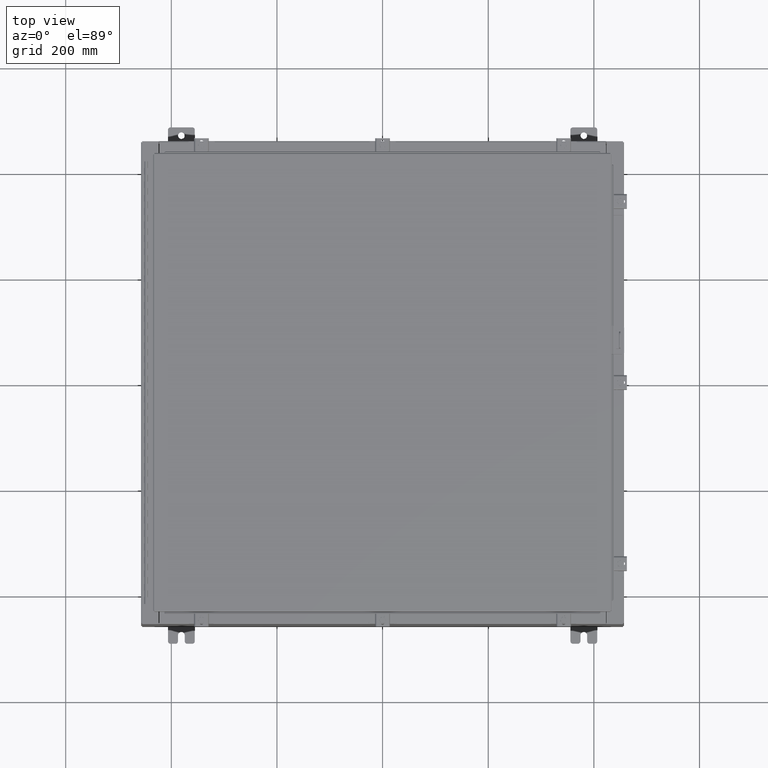
[diagram: clean part render]
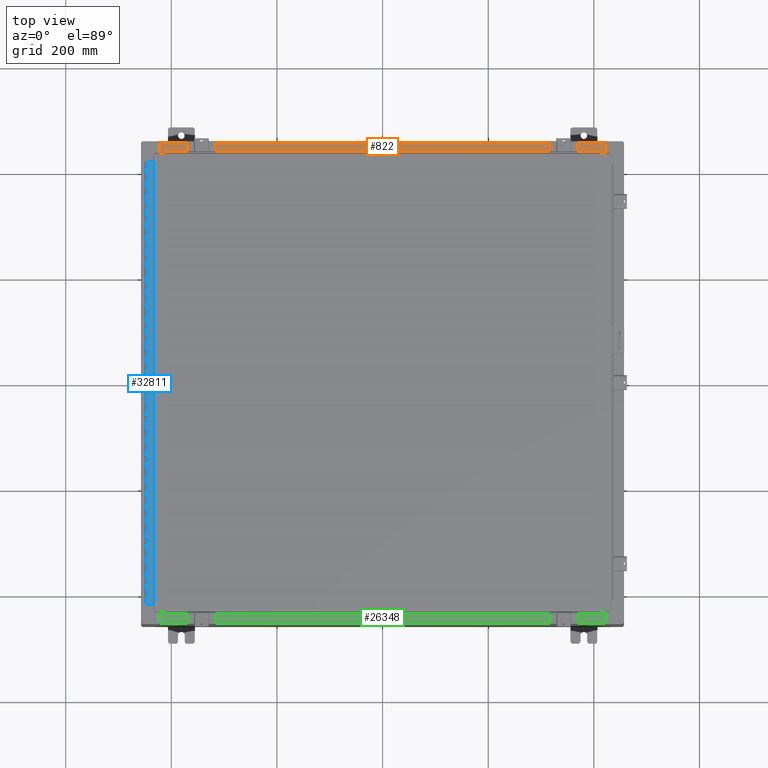
[diagram: same view with three faces highlighted in distinct colors, each labeled with its STEP entity id]
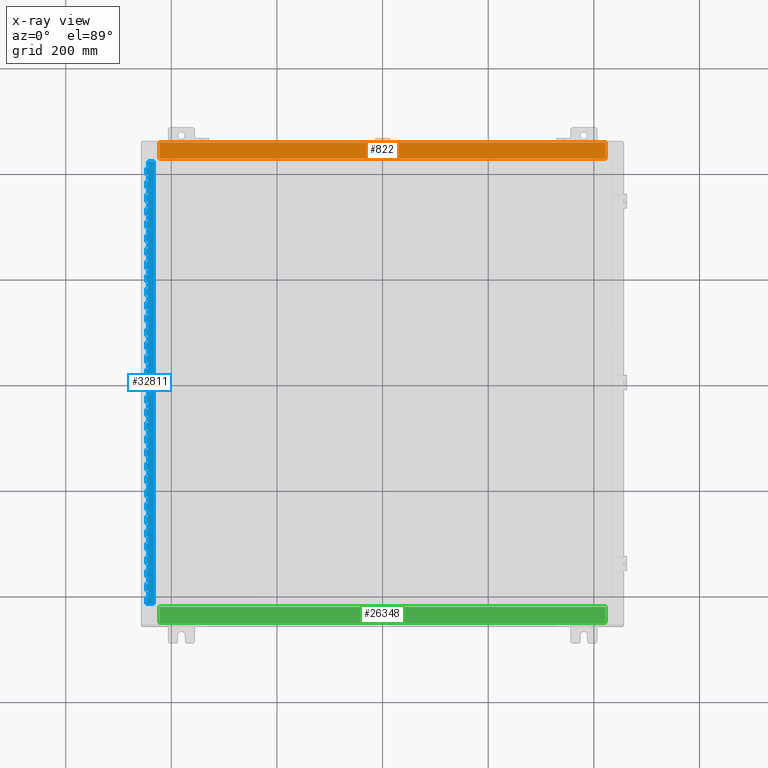
[diagram: x-ray of the same camera — body ghosted, the three highlighted faces saturated]
A machine part, top view with three faces highlighted in distinct colors.
The next image is the same camera in x-ray (body ghosted, the three faces saturated) — at least one of them is partly hidden behind the body in this view.
Their STEP definitions:

[orange] entity #822 — the highlighted planar face has unit normal (0, 0, 1).
#822 = ADVANCED_FACE ( 'NONE', ( #21079 ), #42556, .T. ) ;
#2672 = VERTEX_POINT ( 'NONE', #3597 ) ;
#3267 = DIRECTION ( 'NONE',  ( 0.0000000000000000000, -1.000000000000000000, 2.674785894579892700E-015 ) ) ;
#3597 = CARTESIAN_POINT ( 'NONE',  ( -16.63719999999999600, -1.287299999999999200, 6.000000000000003600 ) ) ;
#4316 = VECTOR ( 'NONE', #26629, 39.37007874015748100 ) ;
#7510 = EDGE_LOOP ( 'NONE', ( #10776, #38435, #36183, #31541 ) ) ;
#9084 = EDGE_CURVE ( 'NONE', #14133, #2672, #22083, .T. ) ;
#10536 = LINE ( 'NONE', #36001, #28495 ) ;
#10776 = ORIENTED_EDGE ( 'NONE', *, *, #30029, .F. ) ;
#14133 = VERTEX_POINT ( 'NONE', #14298 ) ;
#14298 = CARTESIAN_POINT ( 'NONE',  ( 16.63720000000000400, -1.287299999999999200, 6.000000000000003600 ) ) ;
#14504 = DIRECTION ( 'NONE',  ( -0.0000000000000000000, 1.000000000000000000, -2.674785894579892700E-015 ) ) ;
#17445 = LINE ( 'NONE', #40845, #28137 ) ;
#19315 = CARTESIAN_POINT ( 'NONE',  ( 16.63720000000000400, -0.08770000000000026400, 5.999999999999999100 ) ) ;
#19420 = CARTESIAN_POINT ( 'NONE',  ( 16.63720000000000400, -1.300299999999999300, 6.000000000000003600 ) ) ;
#21079 = FACE_OUTER_BOUND ( 'NONE', #7510, .T. ) ;
#21099 = CARTESIAN_POINT ( 'NONE',  ( -2.276882821461954300E-018, 1.529834876451987200E-014, 5.999999999999999100 ) ) ;
#22083 = LINE ( 'NONE', #29243, #30541 ) ;
#22147 = DIRECTION ( 'NONE',  ( -1.000000000000000000, 0.0000000000000000000, 0.0000000000000000000 ) ) ;
#24694 = DIRECTION ( 'NONE',  ( 0.0000000000000000000, 2.674785894579892700E-015, 1.000000000000000000 ) ) ;
#25419 = VERTEX_POINT ( 'NONE', #19315 ) ;
#26245 = VERTEX_POINT ( 'NONE', #39484 ) ;
#26629 = DIRECTION ( 'NONE',  ( -0.0000000000000000000, -1.000000000000000000, 3.566381192773190000E-015 ) ) ;
#28137 = VECTOR ( 'NONE', #30070, 39.37007874015748100 ) ;
#28495 = VECTOR ( 'NONE', #14504, 39.37007874015748100 ) ;
#29243 = CARTESIAN_POINT ( 'NONE',  ( 16.63720000000000400, -1.287299999999999200, 6.000000000000001800 ) ) ;
#30029 = EDGE_CURVE ( 'NONE', #2672, #26245, #10536, .T. ) ;
#30070 = DIRECTION ( 'NONE',  ( -1.000000000000000000, 3.284023746380717400E-017, -8.784060394284559800E-032 ) ) ;
#30541 = VECTOR ( 'NONE', #22147, 39.37007874015748100 ) ;
#31541 = ORIENTED_EDGE ( 'NONE', *, *, #34663, .T. ) ;
#32890 = LINE ( 'NONE', #19420, #4316 ) ;
#34663 = EDGE_CURVE ( 'NONE', #25419, #26245, #17445, .T. ) ;
#35890 = EDGE_CURVE ( 'NONE', #25419, #14133, #32890, .T. ) ;
#36001 = CARTESIAN_POINT ( 'NONE',  ( -16.63719999999999600, -0.07470000000000015500, 5.999999999999999100 ) ) ;
#36183 = ORIENTED_EDGE ( 'NONE', *, *, #35890, .F. ) ;
#38435 = ORIENTED_EDGE ( 'NONE', *, *, #9084, .F. ) ;
#39484 = CARTESIAN_POINT ( 'NONE',  ( -16.63719999999999600, -0.08770000000000026400, 5.999999999999999100 ) ) ;
#39516 = AXIS2_PLACEMENT_3D ( 'NONE', #21099, #24694, #3267 ) ;
#40845 = CARTESIAN_POINT ( 'NONE',  ( -5.156971941007230600E-018, -0.08770000000000026400, 5.999999999999999100 ) ) ;
#42556 = PLANE ( 'NONE',  #39516 ) ;

[blue] entity #32811 — the highlighted planar face has unit normal (-0, -0, 1).
#23 = CARTESIAN_POINT ( 'NONE',  ( -0.6869999999999983900, 0.5504999999999984400, -26.50000000000000400 ) ) ;
#30 = LINE ( 'NONE', #24207, #38169 ) ;
#43 = VECTOR ( 'NONE', #24634, 39.37007874015748100 ) ;
#54 = DIRECTION ( 'NONE',  ( 6.868414686533044500E-027, -2.262541288042107800E-027, -1.000000000000000000 ) ) ;
#58 = VERTEX_POINT ( 'NONE', #38463 ) ;
#188 = VECTOR ( 'NONE', #30215, 39.37007874015748100 ) ;
#194 = DIRECTION ( 'NONE',  ( -3.389037039080573600E-015, -1.000000000000000000, -2.263323442905345900E-027 ) ) ;
#224 = VECTOR ( 'NONE', #44687, 39.37007874015748100 ) ;
#232 = LINE ( 'NONE', #27379, #27718 ) ;
#252 = ORIENTED_EDGE ( 'NONE', *, *, #25040, .F. ) ;
#301 = EDGE_CURVE ( 'NONE', #40239, #14669, #40210, .T. ) ;
#307 = CARTESIAN_POINT ( 'NONE',  ( -0.6870000000000224800, 0.6754999999999999900, -33.00000000000000000 ) ) ;
#381 = LINE ( 'NONE', #44419, #37398 ) ;
#395 = VECTOR ( 'NONE', #41528, 39.37007874015748100 ) ;
#560 = VERTEX_POINT ( 'NONE', #12531 ) ;
#564 = CARTESIAN_POINT ( 'NONE',  ( -0.6869999999999983900, 0.6755000000000021000, -32.50000000000000000 ) ) ;
#617 = EDGE_CURVE ( 'NONE', #42928, #28846, #19433, .T. ) ;
#628 = CARTESIAN_POINT ( 'NONE',  ( -0.6869999999999983900, 0.6754999999999977700, -27.00000000000000000 ) ) ;
#724 = VECTOR ( 'NONE', #17719, 39.37007874015748100 ) ;
#907 = CARTESIAN_POINT ( 'NONE',  ( -0.6869999999999983900, 0.5505000000000005400, -26.00000000000000400 ) ) ;
#970 = LINE ( 'NONE', #38279, #18886 ) ;
#972 = ORIENTED_EDGE ( 'NONE', *, *, #1051, .F. ) ;
#992 = CARTESIAN_POINT ( 'NONE',  ( -0.6869999999999983900, 0.5504999999999984400, -14.99999999999999800 ) ) ;
#1025 = VERTEX_POINT ( 'NONE', #25807 ) ;
#1037 = CARTESIAN_POINT ( 'NONE',  ( -0.6869999999999983900, 0.6755000000000174200, -0.9999999999999992200 ) ) ;
#1046 = VECTOR ( 'NONE', #5745, 39.37007874015748100 ) ;
#1051 = EDGE_CURVE ( 'NONE', #29670, #44710, #31211, .T. ) ;
#1187 = CARTESIAN_POINT ( 'NONE',  ( -0.6870000000000224800, 0.6754999999999999900, -33.00000000000000000 ) ) ;
#1294 = CARTESIAN_POINT ( 'NONE',  ( -0.6870000000000224800, 0.8004999999999993200, -9.500000000000017800 ) ) ;
#1308 = CARTESIAN_POINT ( 'NONE',  ( -0.6869999999999983900, 0.5505000000000005400, -23.00000000000000400 ) ) ;
#1317 = LINE ( 'NONE', #36918, #38313 ) ;
#1347 = CARTESIAN_POINT ( 'NONE',  ( -0.6869999999999983900, 0.6754999999999977700, -32.00000000000000000 ) ) ;
#1380 = VERTEX_POINT ( 'NONE', #9667 ) ;
#1439 = VECTOR ( 'NONE', #37430, 39.37007874015748100 ) ;
#1487 = VERTEX_POINT ( 'NONE', #24791 ) ;
#1493 = VERTEX_POINT ( 'NONE', #27983 ) ;
#1498 = DIRECTION ( 'NONE',  ( -3.389037039080573600E-015, -1.000000000000000000, -2.263323442905345900E-027 ) ) ;
#1518 = VERTEX_POINT ( 'NONE', #32348 ) ;
#1534 = CARTESIAN_POINT ( 'NONE',  ( -0.6869999999999962800, 0.8004999999999993200, -27.00000000000000000 ) ) ;
#1663 = DIRECTION ( 'NONE',  ( 6.868414686533044500E-027, -2.262541288042107800E-027, -1.000000000000000000 ) ) ;
#1708 = EDGE_CURVE ( 'NONE', #45547, #18155, #27190, .T. ) ;
#1738 = VECTOR ( 'NONE', #14561, 39.37007874015748100 ) ;
#1793 = LINE ( 'NONE', #40425, #29263 ) ;
#1826 = CARTESIAN_POINT ( 'NONE',  ( -0.6869999999999983900, 0.5505000000000005400, -17.99999999999999600 ) ) ;
#1908 = CARTESIAN_POINT ( 'NONE',  ( -0.6869999999999983900, 0.8004999999999993200, -31.50000000000000400 ) ) ;
#1915 = ORIENTED_EDGE ( 'NONE', *, *, #19736, .F. ) ;
#1954 = CARTESIAN_POINT ( 'NONE',  ( -0.6870000000000224800, 0.6754999999999977700, -24.50000000000000400 ) ) ;
#1969 = ORIENTED_EDGE ( 'NONE', *, *, #31473, .T. ) ;
#1979 = LINE ( 'NONE', #4549, #19882 ) ;
#2004 = CARTESIAN_POINT ( 'NONE',  ( -0.6870000000000224800, 0.6754999999999999900, -33.00000000000000000 ) ) ;
#2007 = CARTESIAN_POINT ( 'NONE',  ( -0.6869999999999983900, 0.8004999999999993200, -29.99999999999999600 ) ) ;
#2041 = CARTESIAN_POINT ( 'NONE',  ( -0.6869999999999983900, 0.5505000000000005400, -23.50000000000000000 ) ) ;
#2042 = EDGE_CURVE ( 'NONE', #1493, #25722, #42263, .T. ) ;
#2124 = DIRECTION ( 'NONE',  ( -6.868414686533044500E-027, 2.262541288042107800E-027, 1.000000000000000000 ) ) ;
#2255 = DIRECTION ( 'NONE',  ( 3.389037039080573600E-015, 1.000000000000000000, 2.263323442905345900E-027 ) ) ;
#2283 = VECTOR ( 'NONE', #31012, 39.37007874015748100 ) ;
#2300 = EDGE_CURVE ( 'NONE', #36906, #12666, #23268, .T. ) ;
#2302 = CARTESIAN_POINT ( 'NONE',  ( -0.6869999999999983900, 0.8004999999999993200, -31.00000000000000000 ) ) ;
#2335 = CARTESIAN_POINT ( 'NONE',  ( -0.6869999999999962800, 0.8004999999999993200, -8.000000000000016000 ) ) ;
#2343 = CARTESIAN_POINT ( 'NONE',  ( -0.6870000000000159300, 0.5504999999999984400, -22.00000000000000000 ) ) ;
#2421 = ORIENTED_EDGE ( 'NONE', *, *, #25555, .F. ) ;
#2451 = DIRECTION ( 'NONE',  ( -6.868414686533044500E-027, 2.262541288042107800E-027, 1.000000000000000000 ) ) ;
#2481 = ORIENTED_EDGE ( 'NONE', *, *, #16943, .F. ) ;
#2505 = EDGE_CURVE ( 'NONE', #3859, #43982, #26072, .T. ) ;
#2544 = VERTEX_POINT ( 'NONE', #27750 ) ;
#2557 = ORIENTED_EDGE ( 'NONE', *, *, #32605, .T. ) ;
#2573 = LINE ( 'NONE', #45714, #20471 ) ;
#2607 = VECTOR ( 'NONE', #39344, 39.37007874015748100 ) ;
#2735 = DIRECTION ( 'NONE',  ( 1.000000000000000000, -3.369016658928248300E-015, -6.868463990339560600E-027 ) ) ;
#2799 = VECTOR ( 'NONE', #20976, 39.37007874015748100 ) ;
#2869 = ORIENTED_EDGE ( 'NONE', *, *, #21241, .F. ) ;
#2895 = VERTEX_POINT ( 'NONE', #29916 ) ;
#2900 = EDGE_CURVE ( 'NONE', #19860, #1518, #37836, .T. ) ;
#2951 = ORIENTED_EDGE ( 'NONE', *, *, #5982, .F. ) ;
#2963 = ORIENTED_EDGE ( 'NONE', *, *, #8420, .F. ) ;
#2974 = EDGE_CURVE ( 'NONE', #10499, #19860, #43952, .T. ) ;
#2978 = DIRECTION ( 'NONE',  ( 3.389037039080573600E-015, 1.000000000000000000, 2.263323442905345900E-027 ) ) ;
#3103 = VERTEX_POINT ( 'NONE', #45208 ) ;
#3104 = EDGE_CURVE ( 'NONE', #44031, #34716, #232, .T. ) ;
#3108 = CARTESIAN_POINT ( 'NONE',  ( -0.6869999999999983900, 0.5504999999999984400, -19.50000000000000000 ) ) ;
#3207 = CARTESIAN_POINT ( 'NONE',  ( -0.6869999999999983900, 0.5505000000000180900, -27.50000000000000700 ) ) ;
#3287 = CARTESIAN_POINT ( 'NONE',  ( -0.6869999999999962800, 0.8004999999999993200, -25.50000000000000400 ) ) ;
#3397 = EDGE_CURVE ( 'NONE', #35085, #32613, #35494, .T. ) ;
#3411 = VECTOR ( 'NONE', #2978, 39.37007874015748100 ) ;
#3493 = VERTEX_POINT ( 'NONE', #33137 ) ;
#3513 = EDGE_CURVE ( 'NONE', #34655, #30130, #1317, .T. ) ;
#3541 = EDGE_CURVE ( 'NONE', #44557, #44256, #31060, .T. ) ;
#3546 = VERTEX_POINT ( 'NONE', #4792 ) ;
#3578 = CARTESIAN_POINT ( 'NONE',  ( -0.6870000000000224800, 0.8005000000000167500, -27.50000000000000000 ) ) ;
#3682 = ORIENTED_EDGE ( 'NONE', *, *, #19781, .T. ) ;
#3717 = LINE ( 'NONE', #14255, #2607 ) ;
#3758 = EDGE_CURVE ( 'NONE', #3493, #43982, #23144, .T. ) ;
#3859 = VERTEX_POINT ( 'NONE', #36128 ) ;
#3872 = LINE ( 'NONE', #38851, #31360 ) ;
#3982 = VERTEX_POINT ( 'NONE', #19042 ) ;
#4070 = VERTEX_POINT ( 'NONE', #5113 ) ;
#4129 = CARTESIAN_POINT ( 'NONE',  ( -0.6870000000000224800, 0.8004999999999993200, -18.50000000000000000 ) ) ;
#4166 = ORIENTED_EDGE ( 'NONE', *, *, #36581, .T. ) ;
#4174 = EDGE_CURVE ( 'NONE', #14866, #45321, #43260, .T. ) ;
#4188 = ORIENTED_EDGE ( 'NONE', *, *, #33741, .F. ) ;
#4353 = DIRECTION ( 'NONE',  ( 3.369016658928247900E-015, 1.000000000000000000, 2.263328142633479400E-027 ) ) ;
#4431 = VECTOR ( 'NONE', #1498, 39.37007874015748100 ) ;
#4454 = ORIENTED_EDGE ( 'NONE', *, *, #9301, .F. ) ;
#4460 = VECTOR ( 'NONE', #14786, 39.37007874015748100 ) ;
#4485 = DIRECTION ( 'NONE',  ( 6.868414686533044500E-027, -2.262541288042107800E-027, -1.000000000000000000 ) ) ;
#4504 = VECTOR ( 'NONE', #18295, 39.37007874015748100 ) ;
#4515 = DIRECTION ( 'NONE',  ( -3.389037039080573600E-015, -1.000000000000000000, -2.263323442905345900E-027 ) ) ;
#4549 = CARTESIAN_POINT ( 'NONE',  ( -0.6869999999999983900, 0.8004999999999927700, -22.50000000000000000 ) ) ;
#4562 = LINE ( 'NONE', #45885, #3411 ) ;
#4597 = LINE ( 'NONE', #2007, #32049 ) ;
#4730 = ORIENTED_EDGE ( 'NONE', *, *, #11505, .F. ) ;
#4771 = EDGE_CURVE ( 'NONE', #14858, #11588, #40990, .T. ) ;
#4782 = VECTOR ( 'NONE', #16742, 39.37007874015748100 ) ;
#4792 = CARTESIAN_POINT ( 'NONE',  ( -0.6869999999999983900, 0.6754999999999999900, -9.000000000000016000 ) ) ;
#4800 = DIRECTION ( 'NONE',  ( 6.868414686533044500E-027, -2.262541288042107800E-027, -1.000000000000000000 ) ) ;
#4832 = CARTESIAN_POINT ( 'NONE',  ( -0.6869999999999983900, 0.5504999999999984400, -17.50000000000000000 ) ) ;
#4955 = LINE ( 'NONE', #12702, #22861 ) ;
#4959 = LINE ( 'NONE', #24329, #41922 ) ;
#4968 = EDGE_CURVE ( 'NONE', #36494, #23158, #4562, .T. ) ;
#5004 = VECTOR ( 'NONE', #1663, 39.37007874015748100 ) ;
#5015 = ORIENTED_EDGE ( 'NONE', *, *, #41950, .F. ) ;
#5048 = CARTESIAN_POINT ( 'NONE',  ( -0.6869999999999983900, 0.8004999999999993200, -14.99999999999999800 ) ) ;
#5113 = CARTESIAN_POINT ( 'NONE',  ( -0.6869999999999983900, 0.6754999999999999900, -20.50000000000000400 ) ) ;
#5131 = EDGE_CURVE ( 'NONE', #30466, #37688, #34789, .T. ) ;
#5147 = CARTESIAN_POINT ( 'NONE',  ( -0.6869999999999983900, 0.6754999999999999900, -21.00000000000000000 ) ) ;
#5272 = LINE ( 'NONE', #14025, #43336 ) ;
#5374 = VECTOR ( 'NONE', #9654, 39.37007874015748100 ) ;
#5485 = CARTESIAN_POINT ( 'NONE',  ( -0.6870000000000224800, 0.6754999999999999900, -33.00000000000000000 ) ) ;
#5505 = VECTOR ( 'NONE', #42429, 39.37007874015748100 ) ;
#5516 = VECTOR ( 'NONE', #18183, 39.37007874015748100 ) ;
#5557 = EDGE_CURVE ( 'NONE', #31774, #33691, #10648, .T. ) ;
#5561 = ORIENTED_EDGE ( 'NONE', *, *, #1708, .T. ) ;
#5576 = VERTEX_POINT ( 'NONE', #45375 ) ;
#5619 = ORIENTED_EDGE ( 'NONE', *, *, #17506, .F. ) ;
#5707 = VERTEX_POINT ( 'NONE', #42503 ) ;
#5744 = VERTEX_POINT ( 'NONE', #28461 ) ;
#5745 = DIRECTION ( 'NONE',  ( 3.389037039080573600E-015, 1.000000000000000000, 2.263323442905345900E-027 ) ) ;
#5756 = CARTESIAN_POINT ( 'NONE',  ( -0.6869999999999983900, 0.5504999999999984400, -24.50000000000000400 ) ) ;
#5831 = LINE ( 'NONE', #31199, #42768 ) ;
#5836 = ORIENTED_EDGE ( 'NONE', *, *, #10194, .F. ) ;
#5906 = LINE ( 'NONE', #33639, #23802 ) ;
#5931 = ORIENTED_EDGE ( 'NONE', *, *, #17321, .F. ) ;
#5933 = CARTESIAN_POINT ( 'NONE',  ( -0.6870000000000247000, 0.5504999999999984400, -12.49999999999999800 ) ) ;
#5944 = VECTOR ( 'NONE', #16209, 39.37007874015748100 ) ;
#5982 = EDGE_CURVE ( 'NONE', #1025, #560, #19018, .T. ) ;
#6015 = LINE ( 'NONE', #2004, #42944 ) ;
#6019 = ORIENTED_EDGE ( 'NONE', *, *, #33834, .T. ) ;
#6030 = CARTESIAN_POINT ( 'NONE',  ( -0.6869999999999983900, 0.5504999999999984400, -24.50000000000000400 ) ) ;
#6167 = ORIENTED_EDGE ( 'NONE', *, *, #33774, .F. ) ;
#6209 = EDGE_CURVE ( 'NONE', #14751, #44484, #29120, .T. ) ;
#6226 = DIRECTION ( 'NONE',  ( 3.389037039080573600E-015, 1.000000000000000000, 2.263323442905345900E-027 ) ) ;
#6232 = CARTESIAN_POINT ( 'NONE',  ( -0.6870000000000224800, 0.6754999999999999900, -33.00000000000000000 ) ) ;
#6391 = VECTOR ( 'NONE', #25554, 39.37007874015748100 ) ;
#6429 = ORIENTED_EDGE ( 'NONE', *, *, #9425, .F. ) ;
#6470 = EDGE_CURVE ( 'NONE', #45547, #42928, #38059, .T. ) ;
#6535 = VECTOR ( 'NONE', #12607, 39.37007874015748100 ) ;
#6569 = CARTESIAN_POINT ( 'NONE',  ( -0.6869999999999983900, 0.5505000000000005400, -14.00000000000000000 ) ) ;
#6606 = CARTESIAN_POINT ( 'NONE',  ( -0.6870000000000224800, 0.6754999999999999900, -33.00000000000000000 ) ) ;
#6608 = EDGE_CURVE ( 'NONE', #19770, #21501, #31324, .T. ) ;
#6736 = LINE ( 'NONE', #22040, #4504 ) ;
#6805 = DIRECTION ( 'NONE',  ( -6.868414686533044500E-027, 2.262541288042107800E-027, 1.000000000000000000 ) ) ;
#6926 = VECTOR ( 'NONE', #29088, 39.37007874015748100 ) ;
#6951 = CARTESIAN_POINT ( 'NONE',  ( -0.6869999999999983900, 0.8004999999999993200, -5.000000000000000000 ) ) ;
#6999 = ORIENTED_EDGE ( 'NONE', *, *, #27909, .F. ) ;
#7061 = VECTOR ( 'NONE', #23470, 39.37007874015748100 ) ;
#7146 = LINE ( 'NONE', #29709, #44110 ) ;
#7165 = CARTESIAN_POINT ( 'NONE',  ( -0.6870000000000224800, 0.6754999999999999900, -23.50000000000000000 ) ) ;
#7249 = EDGE_CURVE ( 'NONE', #35231, #19236, #37436, .T. ) ;
#7397 = CARTESIAN_POINT ( 'NONE',  ( -0.6869999999999962800, 0.8004999999999993200, -26.00000000000000000 ) ) ;
#7413 = LINE ( 'NONE', #25973, #35993 ) ;
#7460 = ORIENTED_EDGE ( 'NONE', *, *, #28239, .F. ) ;
#7485 = ORIENTED_EDGE ( 'NONE', *, *, #2974, .F. ) ;
#7586 = VERTEX_POINT ( 'NONE', #20230 ) ;
#7601 = CARTESIAN_POINT ( 'NONE',  ( -0.6869999999999983900, 0.6754999999999999900, -11.50000000000002500 ) ) ;
#7638 = EDGE_CURVE ( 'NONE', #42396, #9004, #12127, .T. ) ;
#7664 = VECTOR ( 'NONE', #28447, 39.37007874015748100 ) ;
#7876 = VERTEX_POINT ( 'NONE', #10978 ) ;
#7878 = LINE ( 'NONE', #33268, #26926 ) ;
#7961 = CARTESIAN_POINT ( 'NONE',  ( -0.6870000000000159300, 0.8004999999999993200, -29.50000000000000000 ) ) ;
#7962 = LINE ( 'NONE', #39618, #25876 ) ;
#8047 = VECTOR ( 'NONE', #18523, 39.37007874015748100 ) ;
#8121 = CARTESIAN_POINT ( 'NONE',  ( -0.6870000000000224800, 0.6754999999999999900, -33.00000000000000000 ) ) ;
#8198 = EDGE_CURVE ( 'NONE', #31857, #30762, #44033, .T. ) ;
#8313 = DIRECTION ( 'NONE',  ( -3.389037039080573600E-015, -1.000000000000000000, -2.263323442905345900E-027 ) ) ;
#8326 = EDGE_CURVE ( 'NONE', #29039, #30366, #2573, .T. ) ;
#8399 = DIRECTION ( 'NONE',  ( -6.868414686533044500E-027, 2.262541288042107800E-027, 1.000000000000000000 ) ) ;
#8420 = EDGE_CURVE ( 'NONE', #40314, #42725, #26647, .T. ) ;
#8459 = DIRECTION ( 'NONE',  ( 3.389037039080573600E-015, 1.000000000000000000, 2.263323442905345900E-027 ) ) ;
#8529 = CARTESIAN_POINT ( 'NONE',  ( -0.6870000000000224800, 0.8004999999999993200, -19.50000000000000000 ) ) ;
#8546 = DIRECTION ( 'NONE',  ( 6.868414686533044500E-027, -2.262541288042107800E-027, -1.000000000000000000 ) ) ;
#8550 = LINE ( 'NONE', #36487, #26468 ) ;
#8584 = CARTESIAN_POINT ( 'NONE',  ( -0.6869999999999983900, 0.5505000000000005400, -19.00000000000000000 ) ) ;
#8589 = VECTOR ( 'NONE', #37342, 39.37007874015748100 ) ;
#8597 = VERTEX_POINT ( 'NONE', #11392 ) ;
#8675 = ORIENTED_EDGE ( 'NONE', *, *, #33227, .F. ) ;
#8702 = LINE ( 'NONE', #40315, #45677 ) ;
#8712 = CARTESIAN_POINT ( 'NONE',  ( -0.6870000000000224800, 0.6754999999999999900, -33.00000000000000000 ) ) ;
#8713 = EDGE_CURVE ( 'NONE', #5744, #16016, #5906, .T. ) ;
#8770 = VERTEX_POINT ( 'NONE', #8879 ) ;
#8793 = LINE ( 'NONE', #42649, #7664 ) ;
#8815 = CARTESIAN_POINT ( 'NONE',  ( -0.6870000000000247000, 0.5505000000000180900, -10.50000000000000000 ) ) ;
#8872 = EDGE_CURVE ( 'NONE', #12666, #15888, #9797, .T. ) ;
#8879 = CARTESIAN_POINT ( 'NONE',  ( -0.6869999999999983900, 0.5505000000000005400, -4.500000000000002700 ) ) ;
#8888 = CARTESIAN_POINT ( 'NONE',  ( -0.6870000000000224800, 0.8004999999999993200, -28.00000000000000000 ) ) ;
#8917 = VECTOR ( 'NONE', #4515, 39.37007874015748100 ) ;
#8947 = CARTESIAN_POINT ( 'NONE',  ( -0.6870000000000247000, 0.5505000000000005400, -11.50000000000000000 ) ) ;
#8955 = VECTOR ( 'NONE', #12088, 39.37007874015748100 ) ;
#9004 = VERTEX_POINT ( 'NONE', #42972 ) ;
#9038 = VECTOR ( 'NONE', #41314, 39.37007874015748100 ) ;
#9072 = CARTESIAN_POINT ( 'NONE',  ( -0.6870000000000247000, 0.5504999999999984400, -29.50000000000000400 ) ) ;
#9101 = CARTESIAN_POINT ( 'NONE',  ( -0.6870000000000224800, 0.6754999999999999900, -14.50000000000002500 ) ) ;
#9208 = VECTOR ( 'NONE', #18567, 39.37007874015748100 ) ;
#9222 = VECTOR ( 'NONE', #33496, 39.37007874015748100 ) ;
#9250 = LINE ( 'NONE', #37139, #27181 ) ;
#9261 = ORIENTED_EDGE ( 'NONE', *, *, #44747, .F. ) ;
#9295 = VECTOR ( 'NONE', #19900, 39.37007874015748100 ) ;
#9301 = EDGE_CURVE ( 'NONE', #45777, #28356, #28831, .T. ) ;
#9361 = ORIENTED_EDGE ( 'NONE', *, *, #2505, .F. ) ;
#9425 = EDGE_CURVE ( 'NONE', #5576, #32613, #5272, .T. ) ;
#9548 = CARTESIAN_POINT ( 'NONE',  ( -0.6869999999999983900, 0.6754999999999999900, -30.50000000000000400 ) ) ;
#9585 = LINE ( 'NONE', #17426, #43 ) ;
#9654 = DIRECTION ( 'NONE',  ( -3.389037039080573600E-015, -1.000000000000000000, -2.263323442905345900E-027 ) ) ;
#9667 = CARTESIAN_POINT ( 'NONE',  ( -0.6869999999999983900, 0.5504999999999984400, -14.49999999999999800 ) ) ;
#9685 = CARTESIAN_POINT ( 'NONE',  ( -0.6869999999999962800, 0.6754999999999999900, -23.00000000000000400 ) ) ;
#9701 = CARTESIAN_POINT ( 'NONE',  ( -0.6869999999999983900, 0.8004999999999993200, -14.49999999999999800 ) ) ;
#9713 = DIRECTION ( 'NONE',  ( -6.868414686533044500E-027, 2.262541288042107800E-027, 1.000000000000000000 ) ) ;
#9796 = VERTEX_POINT ( 'NONE', #16345 ) ;
#9797 = LINE ( 'NONE', #13549, #21538 ) ;
#9814 = DIRECTION ( 'NONE',  ( -6.868414686533044500E-027, 2.262541288042107800E-027, 1.000000000000000000 ) ) ;
#9949 = EDGE_CURVE ( 'NONE', #42984, #15732, #38837, .T. ) ;
#9962 = CARTESIAN_POINT ( 'NONE',  ( -0.6870000000000159300, 0.6754999999999999900, -25.50000000000000700 ) ) ;
#10058 = CARTESIAN_POINT ( 'NONE',  ( -0.6869999999999983900, 0.8004999999999993200, -23.50000000000000000 ) ) ;
#10132 = EDGE_CURVE ( 'NONE', #40239, #26759, #23668, .T. ) ;
#10194 = EDGE_CURVE ( 'NONE', #18102, #42318, #11895, .T. ) ;
#10297 = ORIENTED_EDGE ( 'NONE', *, *, #28579, .F. ) ;
#10364 = LINE ( 'NONE', #1187, #28305 ) ;
#10488 = EDGE_CURVE ( 'NONE', #36714, #1493, #20817, .T. ) ;
#10491 = DIRECTION ( 'NONE',  ( -3.389037039080573600E-015, -1.000000000000000000, -2.263323442905345900E-027 ) ) ;
#10499 = VERTEX_POINT ( 'NONE', #31974 ) ;
#10566 = EDGE_CURVE ( 'NONE', #13566, #36764, #7962, .T. ) ;
#10648 = LINE ( 'NONE', #5933, #2283 ) ;
#10743 = ORIENTED_EDGE ( 'NONE', *, *, #30409, .T. ) ;
#10787 = EDGE_CURVE ( 'NONE', #44503, #1518, #34827, .T. ) ;
#10820 = CARTESIAN_POINT ( 'NONE',  ( -0.6869999999999983900, 0.07550000000000087200, -33.00000000000000000 ) ) ;
#10882 = ORIENTED_EDGE ( 'NONE', *, *, #22252, .F. ) ;
#10978 = CARTESIAN_POINT ( 'NONE',  ( -0.6869999999999983900, 0.07550000000000087200, -33.00000000000000000 ) ) ;
#10993 = VECTOR ( 'NONE', #37175, 39.37007874015748100 ) ;
#11008 = VERTEX_POINT ( 'NONE', #9685 ) ;
#11021 = CARTESIAN_POINT ( 'NONE',  ( -0.6869999999999983900, 0.6754999999999999900, -1.999999999999998400 ) ) ;
#11043 = ORIENTED_EDGE ( 'NONE', *, *, #26395, .F. ) ;
#11125 = CARTESIAN_POINT ( 'NONE',  ( -0.6869999999999983900, 0.6754999999999999900, 0.0000000000000000000 ) ) ;
#11172 = VERTEX_POINT ( 'NONE', #35642 ) ;
#11222 = VECTOR ( 'NONE', #36435, 39.37007874015748100 ) ;
#11348 = CARTESIAN_POINT ( 'NONE',  ( -0.6870000000000006100, 0.6754999999999999900, -17.00000000000002500 ) ) ;
#11378 = VECTOR ( 'NONE', #9814, 39.37007874015748100 ) ;
#11389 = CARTESIAN_POINT ( 'NONE',  ( -0.6870000000000224800, -0.6244999999999998300, -33.00000000000000000 ) ) ;
#11392 = CARTESIAN_POINT ( 'NONE',  ( -0.6869999999999983900, 0.6754999999999999900, -28.00000000000000000 ) ) ;
#11401 = DIRECTION ( 'NONE',  ( -3.389037039080573600E-015, -1.000000000000000000, -2.263323442905345900E-027 ) ) ;
#11505 = EDGE_CURVE ( 'NONE', #18814, #19770, #17358, .T. ) ;
#11588 = VERTEX_POINT ( 'NONE', #13204 ) ;
#11625 = ORIENTED_EDGE ( 'NONE', *, *, #8872, .F. ) ;
#11676 = VERTEX_POINT ( 'NONE', #17574 ) ;
#11809 = CARTESIAN_POINT ( 'NONE',  ( -0.6870000000000247000, 0.5505000000000180900, -1.000000000000003600 ) ) ;
#11895 = LINE ( 'NONE', #8815, #39358 ) ;
#11928 = EDGE_CURVE ( 'NONE', #18747, #17462, #37563, .T. ) ;
#11957 = CARTESIAN_POINT ( 'NONE',  ( -0.6870000000000224800, 0.6754999999999999900, -33.00000000000000000 ) ) ;
#11975 = CARTESIAN_POINT ( 'NONE',  ( -0.6869999999999983900, 0.6754999999999999900, -10.00000000000002700 ) ) ;
#11993 = EDGE_CURVE ( 'NONE', #21153, #26759, #26882, .T. ) ;
#12008 = ORIENTED_EDGE ( 'NONE', *, *, #24710, .T. ) ;
#12073 = CARTESIAN_POINT ( 'NONE',  ( -0.6870000000000247000, 0.5504999999999984400, -2.500000000000000000 ) ) ;
#12088 = DIRECTION ( 'NONE',  ( 3.389037039080573600E-015, 1.000000000000000000, 2.263323442905345900E-027 ) ) ;
#12107 = LINE ( 'NONE', #33396, #10993 ) ;
#12127 = LINE ( 'NONE', #34806, #20523 ) ;
#12182 = CARTESIAN_POINT ( 'NONE',  ( -0.6869999999999983900, 0.6754999999999999900, -12.50000000000002500 ) ) ;
#12197 = DIRECTION ( 'NONE',  ( 6.868414686533044500E-027, -2.262541288042107800E-027, -1.000000000000000000 ) ) ;
#12261 = CARTESIAN_POINT ( 'NONE',  ( -0.6870000000000224800, 0.6754999999999999900, -33.00000000000000000 ) ) ;
#12409 = CARTESIAN_POINT ( 'NONE',  ( -0.6870000000000006100, 0.8004999999999993200, -2.500000000000000000 ) ) ;
#12413 = VECTOR ( 'NONE', #12643, 39.37007874015748100 ) ;
#12427 = CARTESIAN_POINT ( 'NONE',  ( -0.6869999999999983900, 0.5505000000000005400, -16.50000000000000000 ) ) ;
#12458 = CARTESIAN_POINT ( 'NONE',  ( -0.6870000000000224800, 0.5505000000000005400, -21.50000000000000400 ) ) ;
#12531 = CARTESIAN_POINT ( 'NONE',  ( -0.6870000000000247000, 0.5505000000000005400, -21.00000000000000400 ) ) ;
#12607 = DIRECTION ( 'NONE',  ( 3.389037039080573600E-015, 1.000000000000000000, 2.263323442905345900E-027 ) ) ;
#12634 = CARTESIAN_POINT ( 'NONE',  ( -0.6869999999999983900, 0.6754999999999999900, -18.50000000000002500 ) ) ;
#12643 = DIRECTION ( 'NONE',  ( -6.868414686533044500E-027, 2.262541288042107800E-027, 1.000000000000000000 ) ) ;
#12663 = VECTOR ( 'NONE', #22292, 39.37007874015748100 ) ;
#12666 = VERTEX_POINT ( 'NONE', #40620 ) ;
#12702 = CARTESIAN_POINT ( 'NONE',  ( -0.6870000000000224800, 0.5505000000000005400, -21.50000000000000400 ) ) ;
#12780 = LINE ( 'NONE', #3578, #39128 ) ;
#12813 = LINE ( 'NONE', #12409, #4431 ) ;
#12831 = EDGE_CURVE ( 'NONE', #34716, #40314, #4955, .T. ) ;
#12847 = VECTOR ( 'NONE', #16870, 39.37007874015748100 ) ;
#12856 = ORIENTED_EDGE ( 'NONE', *, *, #40605, .T. ) ;
#12875 = DIRECTION ( 'NONE',  ( 6.868414686533044500E-027, -2.262541288042107800E-027, -1.000000000000000000 ) ) ;
#12954 = EDGE_CURVE ( 'NONE', #40553, #31857, #45835, .T. ) ;
#12990 = DIRECTION ( 'NONE',  ( 6.868414686533044500E-027, -2.262541288042107800E-027, -1.000000000000000000 ) ) ;
#13047 = EDGE_CURVE ( 'NONE', #16145, #8597, #43577, .T. ) ;
#13055 = CARTESIAN_POINT ( 'NONE',  ( -0.6870000000000224800, 0.8005000000000189700, -10.50000000000000200 ) ) ;
#13202 = ORIENTED_EDGE ( 'NONE', *, *, #20016, .F. ) ;
#13204 = CARTESIAN_POINT ( 'NONE',  ( -0.6870000000000181500, 0.5504999999999984400, -31.50000000000000400 ) ) ;
#13212 = ORIENTED_EDGE ( 'NONE', *, *, #6470, .F. ) ;
#13241 = VERTEX_POINT ( 'NONE', #29779 ) ;
#13255 = CARTESIAN_POINT ( 'NONE',  ( -0.6869999999999983900, 0.5505000000000005400, -18.50000000000000000 ) ) ;
#13283 = ORIENTED_EDGE ( 'NONE', *, *, #29995, .F. ) ;
#13305 = CARTESIAN_POINT ( 'NONE',  ( -0.6869999999999983900, 0.5505000000000005400, -9.000000000000016000 ) ) ;
#13329 = DIRECTION ( 'NONE',  ( 6.868414686533044500E-027, -2.262541288042107800E-027, -1.000000000000000000 ) ) ;
#13355 = VECTOR ( 'NONE', #44022, 39.37007874015748100 ) ;
#13485 = ORIENTED_EDGE ( 'NONE', *, *, #21395, .T. ) ;
#13549 = CARTESIAN_POINT ( 'NONE',  ( -0.6869999999999983900, 0.5505000000000005400, -9.500000000000017800 ) ) ;
#13566 = VERTEX_POINT ( 'NONE', #14352 ) ;
#13701 = CARTESIAN_POINT ( 'NONE',  ( -0.6870000000000247000, 0.5504999999999984400, -20.00000000000000000 ) ) ;
#13751 = ORIENTED_EDGE ( 'NONE', *, *, #12954, .F. ) ;
#13791 = VERTEX_POINT ( 'NONE', #5147 ) ;
#13832 = ORIENTED_EDGE ( 'NONE', *, *, #28170, .F. ) ;
#13839 = ORIENTED_EDGE ( 'NONE', *, *, #45671, .T. ) ;
#13861 = LINE ( 'NONE', #20367, #42436 ) ;
#13921 = DIRECTION ( 'NONE',  ( -6.868414686533044500E-027, 2.262541288042107800E-027, 1.000000000000000000 ) ) ;
#14025 = CARTESIAN_POINT ( 'NONE',  ( -0.6869999999999983900, 0.8004999999999993200, -32.00000000000000000 ) ) ;
#14215 = EDGE_CURVE ( 'NONE', #44215, #8770, #38542, .T. ) ;
#14217 = ORIENTED_EDGE ( 'NONE', *, *, #14635, .F. ) ;
#14255 = CARTESIAN_POINT ( 'NONE',  ( -0.6870000000000247000, 0.5505000000000005400, -11.50000000000000000 ) ) ;
#14352 = CARTESIAN_POINT ( 'NONE',  ( -0.6869999999999983900, 0.6754999999999999900, -13.50000000000002700 ) ) ;
#14355 = CARTESIAN_POINT ( 'NONE',  ( -0.6870000000000224800, 0.6754999999999977700, -5.499999999999995600 ) ) ;
#14373 = LINE ( 'NONE', #24730, #33467 ) ;
#14388 = DIRECTION ( 'NONE',  ( -6.868414686533044500E-027, 2.262541288042107800E-027, 1.000000000000000000 ) ) ;
#14411 = CARTESIAN_POINT ( 'NONE',  ( -0.6870000000000224800, 0.8004999999999993200, -0.4999999999999973900 ) ) ;
#14468 = LINE ( 'NONE', #22552, #13355 ) ;
#14500 = ORIENTED_EDGE ( 'NONE', *, *, #301, .F. ) ;
#14512 = VECTOR ( 'NONE', #34813, 39.37007874015748100 ) ;
#14522 = VECTOR ( 'NONE', #45908, 39.37007874015748100 ) ;
#14529 = DIRECTION ( 'NONE',  ( -6.868414686533044500E-027, 2.262541288042107800E-027, 1.000000000000000000 ) ) ;
#14561 = DIRECTION ( 'NONE',  ( 3.389037039080573600E-015, 1.000000000000000000, 2.263323442905345900E-027 ) ) ;
#14600 = VECTOR ( 'NONE', #28179, 39.37007874015748100 ) ;
#14635 = EDGE_CURVE ( 'NONE', #25722, #30296, #20525, .T. ) ;
#14667 = CARTESIAN_POINT ( 'NONE',  ( -0.6870000000000224800, 0.8004999999999993200, -28.99999999999999600 ) ) ;
#14669 = VERTEX_POINT ( 'NONE', #13255 ) ;
#14751 = VERTEX_POINT ( 'NONE', #13701 ) ;
#14761 = CARTESIAN_POINT ( 'NONE',  ( -0.6869999999999983900, 0.8004999999999993200, -4.500000000000002700 ) ) ;
#14764 = CARTESIAN_POINT ( 'NONE',  ( -0.6869999999999983900, 0.5505000000000005400, -32.50000000000000700 ) ) ;
#14786 = DIRECTION ( 'NONE',  ( -6.868414686533044500E-027, 2.262541288042107800E-027, 1.000000000000000000 ) ) ;
#14826 = CARTESIAN_POINT ( 'NONE',  ( -0.6870000000000181500, 0.5505000000000180900, -12.99999999999999800 ) ) ;
#14858 = VERTEX_POINT ( 'NONE', #28629 ) ;
#14866 = VERTEX_POINT ( 'NONE', #39253 ) ;
#15053 = EDGE_CURVE ( 'NONE', #16251, #23564, #7146, .T. ) ;
#15100 = VERTEX_POINT ( 'NONE', #29863 ) ;
#15252 = VECTOR ( 'NONE', #39166, 39.37007874015748100 ) ;
#15366 = DIRECTION ( 'NONE',  ( 6.868414686533044500E-027, -2.262541288042107800E-027, -1.000000000000000000 ) ) ;
#15390 = DIRECTION ( 'NONE',  ( -6.868414686533044500E-027, 2.262541288042107800E-027, 1.000000000000000000 ) ) ;
#15422 = LINE ( 'NONE', #30361, #5944 ) ;
#15554 = ORIENTED_EDGE ( 'NONE', *, *, #15749, .F. ) ;
#15616 = VECTOR ( 'NONE', #35878, 39.37007874015748100 ) ;
#15629 = VECTOR ( 'NONE', #19193, 39.37007874015748100 ) ;
#15646 = CARTESIAN_POINT ( 'NONE',  ( -0.6869999999999983900, 0.6754999999999999900, -31.00000000000000000 ) ) ;
#15732 = VERTEX_POINT ( 'NONE', #22712 ) ;
#15749 = EDGE_CURVE ( 'NONE', #44710, #37265, #12107, .T. ) ;
#15751 = EDGE_CURVE ( 'NONE', #17565, #45321, #38473, .T. ) ;
#15762 = DIRECTION ( 'NONE',  ( 3.389037039080573600E-015, 1.000000000000000000, 2.263323442905345900E-027 ) ) ;
#15817 = CARTESIAN_POINT ( 'NONE',  ( -0.6869999999999983900, 0.5504999999999984400, -14.49999999999999800 ) ) ;
#15850 = VERTEX_POINT ( 'NONE', #9101 ) ;
#15888 = VERTEX_POINT ( 'NONE', #16432 ) ;
#15915 = CARTESIAN_POINT ( 'NONE',  ( -0.6869999999999983900, 0.5504999999999984400, -5.500000000000001800 ) ) ;
#16016 = VERTEX_POINT ( 'NONE', #45876 ) ;
#16034 = LINE ( 'NONE', #8888, #6535 ) ;
#16145 = VERTEX_POINT ( 'NONE', #32252 ) ;
#16178 = DIRECTION ( 'NONE',  ( 6.868414686533044500E-027, -2.262541288042107800E-027, -1.000000000000000000 ) ) ;
#16200 = VECTOR ( 'NONE', #30442, 39.37007874015748100 ) ;
#16209 = DIRECTION ( 'NONE',  ( -6.868414686533044500E-027, 2.262541288042107800E-027, 1.000000000000000000 ) ) ;
#16251 = VERTEX_POINT ( 'NONE', #26290 ) ;
#16281 = EDGE_CURVE ( 'NONE', #38446, #30202, #38434, .T. ) ;
#16345 = CARTESIAN_POINT ( 'NONE',  ( -0.6870000000000247000, 0.5505000000000005400, -31.00000000000000400 ) ) ;
#16376 = VECTOR ( 'NONE', #44188, 39.37007874015748100 ) ;
#16418 = LINE ( 'NONE', #33261, #41643 ) ;
#16432 = CARTESIAN_POINT ( 'NONE',  ( -0.6869999999999983900, 0.5504999999999984400, -10.00000000000000000 ) ) ;
#16450 = CARTESIAN_POINT ( 'NONE',  ( -0.6869999999999983900, 0.5504999999999984400, -0.5000000000000017800 ) ) ;
#16477 = VECTOR ( 'NONE', #23139, 39.37007874015748100 ) ;
#16681 = ORIENTED_EDGE ( 'NONE', *, *, #37408, .F. ) ;
#16683 = ORIENTED_EDGE ( 'NONE', *, *, #9949, .F. ) ;
#16706 = ORIENTED_EDGE ( 'NONE', *, *, #40814, .F. ) ;
#16742 = DIRECTION ( 'NONE',  ( 3.389037039080573600E-015, 1.000000000000000000, 2.263323442905345900E-027 ) ) ;
#16870 = DIRECTION ( 'NONE',  ( -3.389037039080573600E-015, -1.000000000000000000, -2.263323442905345900E-027 ) ) ;
#16943 = EDGE_CURVE ( 'NONE', #44557, #18102, #30537, .T. ) ;
#17163 = VECTOR ( 'NONE', #29998, 39.37007874015748100 ) ;
#17249 = VECTOR ( 'NONE', #20641, 39.37007874015748100 ) ;
#17259 = DIRECTION ( 'NONE',  ( 3.369016658928247900E-015, 1.000000000000000000, 2.263328142633479400E-027 ) ) ;
#17297 = VECTOR ( 'NONE', #2255, 39.37007874015748100 ) ;
#17321 = EDGE_CURVE ( 'NONE', #4070, #1025, #33844, .T. ) ;
#17344 = ORIENTED_EDGE ( 'NONE', *, *, #43085, .F. ) ;
#17358 = LINE ( 'NONE', #41259, #44842 ) ;
#17387 = CARTESIAN_POINT ( 'NONE',  ( -0.6869999999999983900, 0.6754999999999999900, -19.50000000000002500 ) ) ;
#17415 = CARTESIAN_POINT ( 'NONE',  ( -0.6869999999999983900, 0.6754999999999977700, -17.50000000000002500 ) ) ;
#17426 = CARTESIAN_POINT ( 'NONE',  ( -0.6870000000000006100, 0.8004999999999993200, -21.00000000000000000 ) ) ;
#17462 = VERTEX_POINT ( 'NONE', #11021 ) ;
#17506 = EDGE_CURVE ( 'NONE', #35085, #35231, #27100, .T. ) ;
#17514 = VERTEX_POINT ( 'NONE', #25729 ) ;
#17557 = LINE ( 'NONE', #31443, #45043 ) ;
#17565 = VERTEX_POINT ( 'NONE', #992 ) ;
#17568 = EDGE_CURVE ( 'NONE', #34058, #9796, #16418, .T. ) ;
#17574 = CARTESIAN_POINT ( 'NONE',  ( -0.6869999999999983900, 0.5505000000000005400, -7.000000000000016900 ) ) ;
#17637 = ORIENTED_EDGE ( 'NONE', *, *, #16281, .F. ) ;
#17652 = VERTEX_POINT ( 'NONE', #1308 ) ;
#17719 = DIRECTION ( 'NONE',  ( 3.389037039080573600E-015, 1.000000000000000000, 2.263323442905345900E-027 ) ) ;
#17764 = CARTESIAN_POINT ( 'NONE',  ( -0.6869999999999983900, 0.6755000000000174200, -13.00000000000002500 ) ) ;
#17773 = VECTOR ( 'NONE', #13921, 39.37007874015748100 ) ;
#17845 = LINE ( 'NONE', #23, #15616 ) ;
#17878 = CARTESIAN_POINT ( 'NONE',  ( -0.6869999999999983900, 0.5504999999999984400, -7.500000000000014200 ) ) ;
#17932 = CARTESIAN_POINT ( 'NONE',  ( -0.6870000000000247000, 0.5505000000000005400, -11.00000000000000000 ) ) ;
#18010 = EDGE_CURVE ( 'NONE', #13566, #17514, #34331, .T. ) ;
#18047 = VERTEX_POINT ( 'NONE', #42892 ) ;
#18058 = CARTESIAN_POINT ( 'NONE',  ( -0.6869999999999983900, 0.5505000000000005400, -33.00000000000000000 ) ) ;
#18070 = VECTOR ( 'NONE', #33746, 39.37007874015748100 ) ;
#18085 = LINE ( 'NONE', #12073, #8589 ) ;
#18102 = VERTEX_POINT ( 'NONE', #36031 ) ;
#18155 = VERTEX_POINT ( 'NONE', #11125 ) ;
#18183 = DIRECTION ( 'NONE',  ( -3.389037039080573600E-015, -1.000000000000000000, -2.263323442905345900E-027 ) ) ;
#18295 = DIRECTION ( 'NONE',  ( -3.389037039080573600E-015, -1.000000000000000000, -2.263323442905345900E-027 ) ) ;
#18299 = VERTEX_POINT ( 'NONE', #12182 ) ;
#18327 = DIRECTION ( 'NONE',  ( -3.389037039080573600E-015, -1.000000000000000000, -2.263323442905345900E-027 ) ) ;
#18343 = LINE ( 'NONE', #27260, #36296 ) ;
#18404 = LINE ( 'NONE', #38533, #17249 ) ;
#18421 = ORIENTED_EDGE ( 'NONE', *, *, #46248, .F. ) ;
#18476 = VERTEX_POINT ( 'NONE', #9548 ) ;
#18493 = VERTEX_POINT ( 'NONE', #27557 ) ;
#18523 = DIRECTION ( 'NONE',  ( -3.389037039080573600E-015, -1.000000000000000000, -2.263323442905345900E-027 ) ) ;
#18543 = LINE ( 'NONE', #9072, #9038 ) ;
#18567 = DIRECTION ( 'NONE',  ( -6.868414686533044500E-027, 2.262541288042107800E-027, 1.000000000000000000 ) ) ;
#18571 = ORIENTED_EDGE ( 'NONE', *, *, #4771, .F. ) ;
#18696 = CARTESIAN_POINT ( 'NONE',  ( -0.6869999999999983900, 0.8005000000000189700, -12.99999999999999800 ) ) ;
#18747 = VERTEX_POINT ( 'NONE', #33326 ) ;
#18775 = VECTOR ( 'NONE', #15390, 39.37007874015748100 ) ;
#18808 = LINE ( 'NONE', #37649, #9295 ) ;
#18814 = VERTEX_POINT ( 'NONE', #40827 ) ;
#18866 = ORIENTED_EDGE ( 'NONE', *, *, #21592, .T. ) ;
#18886 = VECTOR ( 'NONE', #20381, 39.37007874015748100 ) ;
#18931 = DIRECTION ( 'NONE',  ( -3.389037039080573600E-015, -1.000000000000000000, -2.263323442905345900E-027 ) ) ;
#18968 = VECTOR ( 'NONE', #194, 39.37007874015748100 ) ;
#19018 = LINE ( 'NONE', #43923, #29775 ) ;
#19042 = CARTESIAN_POINT ( 'NONE',  ( -0.6869999999999983900, 0.6754999999999999900, -26.50000000000000400 ) ) ;
#19082 = ORIENTED_EDGE ( 'NONE', *, *, #22597, .F. ) ;
#19085 = VECTOR ( 'NONE', #26429, 39.37007874015748100 ) ;
#19123 = EDGE_CURVE ( 'NONE', #560, #13791, #9585, .T. ) ;
#19139 = LINE ( 'NONE', #39785, #38218 ) ;
#19145 = CARTESIAN_POINT ( 'NONE',  ( -0.6870000000000224800, 0.6754999999999999900, -33.00000000000000000 ) ) ;
#19193 = DIRECTION ( 'NONE',  ( -6.868414686533044500E-027, 2.262541288042107800E-027, 1.000000000000000000 ) ) ;
#19223 = VECTOR ( 'NONE', #2451, 39.37007874015748100 ) ;
#19236 = VERTEX_POINT ( 'NONE', #18058 ) ;
#19391 = EDGE_CURVE ( 'NONE', #44031, #13791, #7878, .T. ) ;
#19428 = DIRECTION ( 'NONE',  ( 6.868414686533044500E-027, -2.262541288042107800E-027, -1.000000000000000000 ) ) ;
#19433 = LINE ( 'NONE', #16450, #395 ) ;
#19534 = EDGE_CURVE ( 'NONE', #30762, #28522, #30866, .T. ) ;
#19576 = LINE ( 'NONE', #20072, #17297 ) ;
#19608 = LINE ( 'NONE', #19989, #36436 ) ;
#19651 = ORIENTED_EDGE ( 'NONE', *, *, #39462, .F. ) ;
#19736 = EDGE_CURVE ( 'NONE', #37265, #3546, #22954, .T. ) ;
#19766 = DIRECTION ( 'NONE',  ( 3.389037039080573600E-015, 1.000000000000000000, 2.263323442905345900E-027 ) ) ;
#19770 = VERTEX_POINT ( 'NONE', #38876 ) ;
#19781 = EDGE_CURVE ( 'NONE', #36906, #3546, #41999, .T. ) ;
#19783 = VECTOR ( 'NONE', #26123, 39.37007874015748100 ) ;
#19860 = VERTEX_POINT ( 'NONE', #39324 ) ;
#19882 = VECTOR ( 'NONE', #18931, 39.37007874015748100 ) ;
#19900 = DIRECTION ( 'NONE',  ( -6.868414686533044500E-027, 2.262541288042107800E-027, 1.000000000000000000 ) ) ;
#19989 = CARTESIAN_POINT ( 'NONE',  ( -0.6870000000000224800, 0.8004999999999993200, -28.50000000000000000 ) ) ;
#20016 = EDGE_CURVE ( 'NONE', #30202, #21153, #35255, .T. ) ;
#20068 = EDGE_CURVE ( 'NONE', #3982, #3103, #20113, .T. ) ;
#20072 = CARTESIAN_POINT ( 'NONE',  ( -0.6869999999999962800, 0.8004999999999993200, -17.00000000000000000 ) ) ;
#20113 = LINE ( 'NONE', #29780, #39180 ) ;
#20158 = LINE ( 'NONE', #41163, #28600 ) ;
#20230 = CARTESIAN_POINT ( 'NONE',  ( -0.6869999999999983900, 0.6754999999999999900, -12.00000000000002500 ) ) ;
#20367 = CARTESIAN_POINT ( 'NONE',  ( -0.6870000000000224800, 0.6754999999999999900, -33.00000000000000000 ) ) ;
#20381 = DIRECTION ( 'NONE',  ( 3.389037039080573600E-015, 1.000000000000000000, 2.263323442905345900E-027 ) ) ;
#20471 = VECTOR ( 'NONE', #27730, 39.37007874015748100 ) ;
#20503 = VECTOR ( 'NONE', #30118, 39.37007874015748100 ) ;
#20523 = VECTOR ( 'NONE', #13329, 39.37007874015748100 ) ;
#20525 = LINE ( 'NONE', #2335, #28975 ) ;
#20612 = LINE ( 'NONE', #32182, #38579 ) ;
#20641 = DIRECTION ( 'NONE',  ( -6.868414686533044500E-027, 2.262541288042107800E-027, 1.000000000000000000 ) ) ;
#20663 = VECTOR ( 'NONE', #44998, 39.37007874015748100 ) ;
#20665 = ORIENTED_EDGE ( 'NONE', *, *, #6209, .F. ) ;
#20687 = EDGE_CURVE ( 'NONE', #15850, #1380, #23496, .T. ) ;
#20702 = CARTESIAN_POINT ( 'NONE',  ( -0.6869999999999983900, 0.6755000000000174200, -10.50000000000002700 ) ) ;
#20703 = ORIENTED_EDGE ( 'NONE', *, *, #21468, .F. ) ;
#20817 = LINE ( 'NONE', #46195, #37696 ) ;
#20822 = CARTESIAN_POINT ( 'NONE',  ( -0.6870000000000224800, 0.8004999999999993200, -9.000000000000016000 ) ) ;
#20976 = DIRECTION ( 'NONE',  ( -6.868414686533044500E-027, 2.262541288042107800E-027, 1.000000000000000000 ) ) ;
#20978 = EDGE_CURVE ( 'NONE', #7876, #19236, #38630, .T. ) ;
#21016 = EDGE_CURVE ( 'NONE', #13241, #31571, #40862, .T. ) ;
#21153 = VERTEX_POINT ( 'NONE', #1826 ) ;
#21241 = EDGE_CURVE ( 'NONE', #9796, #22062, #30781, .T. ) ;
#21250 = CARTESIAN_POINT ( 'NONE',  ( -0.6869999999999983900, 0.8004999999999993200, -22.00000000000000000 ) ) ;
#21361 = EDGE_CURVE ( 'NONE', #1487, #18155, #4959, .T. ) ;
#21395 = EDGE_CURVE ( 'NONE', #14858, #22062, #40813, .T. ) ;
#21396 = ORIENTED_EDGE ( 'NONE', *, *, #617, .F. ) ;
#21468 = EDGE_CURVE ( 'NONE', #43322, #11676, #20612, .T. ) ;
#21501 = VERTEX_POINT ( 'NONE', #43106 ) ;
#21516 = CARTESIAN_POINT ( 'NONE',  ( -0.6870000000000247000, 0.5505000000000005400, -1.500000000000000900 ) ) ;
#21538 = VECTOR ( 'NONE', #35012, 39.37007874015748100 ) ;
#21592 = EDGE_CURVE ( 'NONE', #29039, #28522, #13861, .T. ) ;
#21661 = ORIENTED_EDGE ( 'NONE', *, *, #4968, .F. ) ;
#21684 = ORIENTED_EDGE ( 'NONE', *, *, #3541, .T. ) ;
#21732 = EDGE_CURVE ( 'NONE', #11172, #17462, #27342, .T. ) ;
#21777 = CARTESIAN_POINT ( 'NONE',  ( -0.6869999999999983900, 0.5504999999999984400, -27.00000000000000000 ) ) ;
#21952 = ORIENTED_EDGE ( 'NONE', *, *, #30120, .F. ) ;
#21958 = CARTESIAN_POINT ( 'NONE',  ( -0.6869999999999983900, 0.8004999999999993200, -32.50000000000000000 ) ) ;
#22040 = CARTESIAN_POINT ( 'NONE',  ( -0.6869999999999983900, 0.8004999999999993200, -12.49999999999999800 ) ) ;
#22062 = VERTEX_POINT ( 'NONE', #15646 ) ;
#22188 = CARTESIAN_POINT ( 'NONE',  ( -0.6870000000000247000, 0.5504999999999984400, -2.500000000000000000 ) ) ;
#22196 = EDGE_CURVE ( 'NONE', #35454, #37688, #32918, .T. ) ;
#22252 = EDGE_CURVE ( 'NONE', #42318, #58, #29557, .T. ) ;
#22253 = VECTOR ( 'NONE', #25565, 39.37007874015748100 ) ;
#22292 = DIRECTION ( 'NONE',  ( 3.389037039080573600E-015, 1.000000000000000000, 2.263323442905345900E-027 ) ) ;
#22391 = CARTESIAN_POINT ( 'NONE',  ( -0.6869999999999983900, 0.6755000000000021000, -29.99999999999999600 ) ) ;
#22422 = CARTESIAN_POINT ( 'NONE',  ( -0.6870000000000181500, 0.8005000000000014300, -20.50000000000000400 ) ) ;
#22537 = EDGE_CURVE ( 'NONE', #46158, #7586, #381, .T. ) ;
#22548 = DIRECTION ( 'NONE',  ( -3.389037039080573600E-015, -1.000000000000000000, -2.263323442905345900E-027 ) ) ;
#22552 = CARTESIAN_POINT ( 'NONE',  ( -0.6869999999999983900, 0.8004999999999993200, -3.999999999999996900 ) ) ;
#22597 = EDGE_CURVE ( 'NONE', #42412, #8597, #16034, .T. ) ;
#22606 = DIRECTION ( 'NONE',  ( 6.868414686533044500E-027, -2.262541288042107800E-027, -1.000000000000000000 ) ) ;
#22621 = LINE ( 'NONE', #22775, #32171 ) ;
#22648 = CARTESIAN_POINT ( 'NONE',  ( -0.6869999999999983900, 0.6754999999999999900, -14.00000000000002500 ) ) ;
#22712 = CARTESIAN_POINT ( 'NONE',  ( -0.6870000000000224800, 0.6754999999999999900, -4.999999999999998200 ) ) ;
#22716 = DIRECTION ( 'NONE',  ( -3.389037039080573600E-015, -1.000000000000000000, -2.263323442905345900E-027 ) ) ;
#22775 = CARTESIAN_POINT ( 'NONE',  ( -0.6870000000000224800, 0.6754999999999999900, -33.00000000000000000 ) ) ;
#22819 = VERTEX_POINT ( 'NONE', #25152 ) ;
#22842 = ORIENTED_EDGE ( 'NONE', *, *, #31165, .F. ) ;
#22861 = VECTOR ( 'NONE', #12875, 39.37007874015748100 ) ;
#22954 = LINE ( 'NONE', #20822, #14522 ) ;
#23023 = ORIENTED_EDGE ( 'NONE', *, *, #13047, .T. ) ;
#23139 = DIRECTION ( 'NONE',  ( 6.868414686533044500E-027, -2.262541288042107800E-027, -1.000000000000000000 ) ) ;
#23144 = LINE ( 'NONE', #6232, #11378 ) ;
#23158 = VERTEX_POINT ( 'NONE', #45028 ) ;
#23205 = ORIENTED_EDGE ( 'NONE', *, *, #26464, .F. ) ;
#23222 = EDGE_CURVE ( 'NONE', #5744, #5707, #33959, .T. ) ;
#23268 = LINE ( 'NONE', #1294, #24386 ) ;
#23300 = DIRECTION ( 'NONE',  ( -6.868414686533044500E-027, 2.262541288042107800E-027, 1.000000000000000000 ) ) ;
#23303 = ORIENTED_EDGE ( 'NONE', *, *, #21361, .F. ) ;
#23392 = ORIENTED_EDGE ( 'NONE', *, *, #28754, .F. ) ;
#23470 = DIRECTION ( 'NONE',  ( 6.868414686533044500E-027, -2.262541288042107800E-027, -1.000000000000000000 ) ) ;
#23496 = LINE ( 'NONE', #9701, #12847 ) ;
#23562 = EDGE_CURVE ( 'NONE', #3493, #42396, #8702, .T. ) ;
#23564 = VERTEX_POINT ( 'NONE', #33110 ) ;
#23617 = VERTEX_POINT ( 'NONE', #37050 ) ;
#23668 = LINE ( 'NONE', #19145, #16376 ) ;
#23692 = ORIENTED_EDGE ( 'NONE', *, *, #44327, .F. ) ;
#23758 = DIRECTION ( 'NONE',  ( 3.389037039080573600E-015, 1.000000000000000000, 2.263323442905345900E-027 ) ) ;
#23802 = VECTOR ( 'NONE', #40824, 39.37007874015748100 ) ;
#23868 = CARTESIAN_POINT ( 'NONE',  ( -0.6870000000000224800, 0.6754999999999999900, -33.00000000000000000 ) ) ;
#23958 = VECTOR ( 'NONE', #19428, 39.37007874015748100 ) ;
#23994 = VECTOR ( 'NONE', #6805, 39.37007874015748100 ) ;
#24010 = CARTESIAN_POINT ( 'NONE',  ( -0.6870000000000224800, 0.6754999999999999900, -6.499999999999999100 ) ) ;
#24028 = LINE ( 'NONE', #12427, #5004 ) ;
#24128 = CARTESIAN_POINT ( 'NONE',  ( -0.6870000000000247000, 0.5505000000000005400, -1.500000000000000900 ) ) ;
#24170 = PLANE ( 'NONE',  #36055 ) ;
#24207 = CARTESIAN_POINT ( 'NONE',  ( -0.6869999999999983900, 0.5505000000000005400, -4.500000000000002700 ) ) ;
#24217 = VECTOR ( 'NONE', #2124, 39.37007874015748100 ) ;
#24298 = CARTESIAN_POINT ( 'NONE',  ( -0.6869999999999983900, 0.5505000000000180900, -25.00000000000000000 ) ) ;
#24320 = EDGE_CURVE ( 'NONE', #29670, #30296, #5831, .T. ) ;
#24329 = CARTESIAN_POINT ( 'NONE',  ( -0.6870000000000028300, -0.6245000000000020500, -2.841121913410833900E-014 ) ) ;
#24386 = VECTOR ( 'NONE', #22716, 39.37007874015748100 ) ;
#24418 = CARTESIAN_POINT ( 'NONE',  ( -0.6869999999999983900, 0.6754999999999999900, -26.00000000000000400 ) ) ;
#24453 = LINE ( 'NONE', #8529, #17163 ) ;
#24538 = CARTESIAN_POINT ( 'NONE',  ( -0.6869999999999983900, 0.6754999999999999900, -18.00000000000002500 ) ) ;
#24621 = ORIENTED_EDGE ( 'NONE', *, *, #29142, .F. ) ;
#24634 = DIRECTION ( 'NONE',  ( 3.389037039080573600E-015, 1.000000000000000000, 2.263323442905345900E-027 ) ) ;
#24710 = EDGE_CURVE ( 'NONE', #18299, #7586, #31585, .T. ) ;
#24730 = CARTESIAN_POINT ( 'NONE',  ( -0.6869999999999983900, 0.8004999999999993200, -16.00000000000000000 ) ) ;
#24791 = CARTESIAN_POINT ( 'NONE',  ( -0.6870000000000006100, 0.07549999999999869300, 0.0000000000000000000 ) ) ;
#25040 = EDGE_CURVE ( 'NONE', #36147, #30209, #17557, .T. ) ;
#25152 = CARTESIAN_POINT ( 'NONE',  ( -0.6870000000000159300, 0.6754999999999999900, -7.000000000000016900 ) ) ;
#25189 = ORIENTED_EDGE ( 'NONE', *, *, #31901, .F. ) ;
#25273 = CARTESIAN_POINT ( 'NONE',  ( -0.6870000000000224800, 0.6754999999999999900, -33.00000000000000000 ) ) ;
#25487 = ORIENTED_EDGE ( 'NONE', *, *, #39203, .F. ) ;
#25514 = DIRECTION ( 'NONE',  ( -3.389037039080573600E-015, -1.000000000000000000, -2.263323442905345900E-027 ) ) ;
#25554 = DIRECTION ( 'NONE',  ( -3.389037039080573600E-015, -1.000000000000000000, -2.263323442905345900E-027 ) ) ;
#25555 = EDGE_CURVE ( 'NONE', #18476, #34058, #45001, .T. ) ;
#25565 = DIRECTION ( 'NONE',  ( -3.389037039080573600E-015, -1.000000000000000000, -2.263323442905345900E-027 ) ) ;
#25722 = VERTEX_POINT ( 'NONE', #26073 ) ;
#25729 = CARTESIAN_POINT ( 'NONE',  ( -0.6870000000000006100, 0.5505000000000005400, -13.50000000000000000 ) ) ;
#25771 = CARTESIAN_POINT ( 'NONE',  ( -0.6869999999999983900, 0.6754999999999999900, -9.500000000000017800 ) ) ;
#25807 = CARTESIAN_POINT ( 'NONE',  ( -0.6870000000000247000, 0.5505000000000005400, -20.50000000000000700 ) ) ;
#25824 = EDGE_CURVE ( 'NONE', #28667, #41821, #44413, .T. ) ;
#25844 = ORIENTED_EDGE ( 'NONE', *, *, #41616, .F. ) ;
#25863 = LINE ( 'NONE', #33693, #36535 ) ;
#25876 = VECTOR ( 'NONE', #14529, 39.37007874015748100 ) ;
#25948 = VECTOR ( 'NONE', #34348, 39.37007874015748100 ) ;
#25951 = ORIENTED_EDGE ( 'NONE', *, *, #19534, .F. ) ;
#25973 = CARTESIAN_POINT ( 'NONE',  ( -0.6869999999999983900, 0.5504999999999984400, -22.50000000000000400 ) ) ;
#26052 = DIRECTION ( 'NONE',  ( -3.389037039080573600E-015, -1.000000000000000000, -2.263323442905345900E-027 ) ) ;
#26072 = LINE ( 'NONE', #38242, #4782 ) ;
#26073 = CARTESIAN_POINT ( 'NONE',  ( -0.6869999999999983900, 0.5504999999999984400, -8.000000000000016000 ) ) ;
#26123 = DIRECTION ( 'NONE',  ( -6.868414686533044500E-027, 2.262541288042107800E-027, 1.000000000000000000 ) ) ;
#26155 = ORIENTED_EDGE ( 'NONE', *, *, #15053, .F. ) ;
#26255 = ORIENTED_EDGE ( 'NONE', *, *, #5557, .F. ) ;
#26290 = CARTESIAN_POINT ( 'NONE',  ( -0.6869999999999983900, 0.5505000000000180900, -15.50000000000000000 ) ) ;
#26309 = ORIENTED_EDGE ( 'NONE', *, *, #23562, .F. ) ;
#26395 = EDGE_CURVE ( 'NONE', #44503, #43322, #1793, .T. ) ;
#26406 = DIRECTION ( 'NONE',  ( -6.868414686533044500E-027, 2.262541288042107800E-027, 1.000000000000000000 ) ) ;
#26419 = LINE ( 'NONE', #3108, #14600 ) ;
#26429 = DIRECTION ( 'NONE',  ( 3.389037039080573600E-015, 1.000000000000000000, 2.263323442905345900E-027 ) ) ;
#26440 = CARTESIAN_POINT ( 'NONE',  ( -0.6869999999999983900, 0.5505000000000005400, -25.50000000000000700 ) ) ;
#26464 = EDGE_CURVE ( 'NONE', #17514, #36147, #25863, .T. ) ;
#26468 = VECTOR ( 'NONE', #32876, 39.37007874015748100 ) ;
#26647 = LINE ( 'NONE', #21250, #36184 ) ;
#26748 = EDGE_CURVE ( 'NONE', #23617, #14751, #26419, .T. ) ;
#26756 = VECTOR ( 'NONE', #39853, 39.37007874015748100 ) ;
#26759 = VERTEX_POINT ( 'NONE', #24538 ) ;
#26853 = CARTESIAN_POINT ( 'NONE',  ( -0.6869999999999983900, 0.8004999999999993200, -11.50000000000000200 ) ) ;
#26882 = LINE ( 'NONE', #41062, #16200 ) ;
#26926 = VECTOR ( 'NONE', #36891, 39.37007874015748100 ) ;
#27067 = ORIENTED_EDGE ( 'NONE', *, *, #7249, .F. ) ;
#27094 = ORIENTED_EDGE ( 'NONE', *, *, #40794, .T. ) ;
#27100 = LINE ( 'NONE', #21958, #8047 ) ;
#27151 = EDGE_CURVE ( 'NONE', #44757, #41821, #38168, .T. ) ;
#27166 = CARTESIAN_POINT ( 'NONE',  ( -0.6870000000000224800, 0.8004999999999971000, -20.00000000000000000 ) ) ;
#27181 = VECTOR ( 'NONE', #8459, 39.37007874015748100 ) ;
#27190 = LINE ( 'NONE', #11957, #18775 ) ;
#27260 = CARTESIAN_POINT ( 'NONE',  ( -0.6869999999999983900, 0.5505000000000005400, -18.50000000000000000 ) ) ;
#27342 = LINE ( 'NONE', #28212, #17773 ) ;
#27352 = LINE ( 'NONE', #15817, #23958 ) ;
#27379 = CARTESIAN_POINT ( 'NONE',  ( -0.6869999999999983900, 0.8004999999999993200, -21.50000000000000400 ) ) ;
#27523 = CARTESIAN_POINT ( 'NONE',  ( -0.6870000000000224800, 0.6754999999999999900, -33.00000000000000000 ) ) ;
#27557 = CARTESIAN_POINT ( 'NONE',  ( -0.6869999999999983900, 0.6754999999999977700, -29.50000000000000000 ) ) ;
#27656 = LINE ( 'NONE', #23868, #19223 ) ;
#27718 = VECTOR ( 'NONE', #41763, 39.37007874015748100 ) ;
#27730 = DIRECTION ( 'NONE',  ( -3.389037039080573600E-015, -1.000000000000000000, -2.263323442905345900E-027 ) ) ;
#27750 = CARTESIAN_POINT ( 'NONE',  ( -0.6870000000000247000, 0.5504999999999984400, -29.50000000000000400 ) ) ;
#27805 = DIRECTION ( 'NONE',  ( 3.369016658928248300E-015, 1.000000000000000000, 2.263328142633479800E-027 ) ) ;
#27870 = ORIENTED_EDGE ( 'NONE', *, *, #37004, .T. ) ;
#27909 = EDGE_CURVE ( 'NONE', #37136, #45819, #19576, .T. ) ;
#27983 = CARTESIAN_POINT ( 'NONE',  ( -0.6869999999999983900, 0.5504999999999984400, -7.500000000000014200 ) ) ;
#28078 = CARTESIAN_POINT ( 'NONE',  ( -0.6869999999999983900, 0.5504999999999984400, -0.5000000000000017800 ) ) ;
#28170 = EDGE_CURVE ( 'NONE', #7876, #1487, #44193, .T. ) ;
#28175 = EDGE_CURVE ( 'NONE', #3103, #44757, #17845, .T. ) ;
#28179 = DIRECTION ( 'NONE',  ( 6.868414686533044500E-027, -2.262541288042107800E-027, -1.000000000000000000 ) ) ;
#28212 = CARTESIAN_POINT ( 'NONE',  ( -0.6870000000000224800, 0.6754999999999999900, -33.00000000000000000 ) ) ;
#28239 = EDGE_CURVE ( 'NONE', #9004, #15100, #14468, .T. ) ;
#28271 = CARTESIAN_POINT ( 'NONE',  ( -0.6870000000000224800, 0.6754999999999999900, -33.00000000000000000 ) ) ;
#28305 = VECTOR ( 'NONE', #8399, 39.37007874015748100 ) ;
#28334 = VERTEX_POINT ( 'NONE', #37477 ) ;
#28356 = VERTEX_POINT ( 'NONE', #8947 ) ;
#28372 = CARTESIAN_POINT ( 'NONE',  ( -0.6870000000000224800, 0.6754999999999999900, -33.00000000000000000 ) ) ;
#28447 = DIRECTION ( 'NONE',  ( -6.868414686533044500E-027, 2.262541288042107800E-027, 1.000000000000000000 ) ) ;
#28461 = CARTESIAN_POINT ( 'NONE',  ( -0.6870000000000181500, 0.6754999999999999900, -16.50000000000002500 ) ) ;
#28522 = VERTEX_POINT ( 'NONE', #45566 ) ;
#28579 = EDGE_CURVE ( 'NONE', #8770, #42984, #30, .T. ) ;
#28600 = VECTOR ( 'NONE', #23300, 39.37007874015748100 ) ;
#28629 = CARTESIAN_POINT ( 'NONE',  ( -0.6869999999999983900, 0.6754999999999999900, -31.50000000000000400 ) ) ;
#28633 = ORIENTED_EDGE ( 'NONE', *, *, #44291, .F. ) ;
#28655 = DIRECTION ( 'NONE',  ( -3.389037039080573600E-015, -1.000000000000000000, -2.263323442905345900E-027 ) ) ;
#28667 = VERTEX_POINT ( 'NONE', #31747 ) ;
#28734 = ORIENTED_EDGE ( 'NONE', *, *, #45115, .F. ) ;
#28754 = EDGE_CURVE ( 'NONE', #31571, #18747, #39798, .T. ) ;
#28830 = ORIENTED_EDGE ( 'NONE', *, *, #43650, .F. ) ;
#28831 = LINE ( 'NONE', #26853, #224 ) ;
#28846 = VERTEX_POINT ( 'NONE', #11809 ) ;
#28975 = VECTOR ( 'NONE', #23758, 39.37007874015748100 ) ;
#29039 = VERTEX_POINT ( 'NONE', #1954 ) ;
#29088 = DIRECTION ( 'NONE',  ( -6.868414686533044500E-027, 2.262541288042107800E-027, 1.000000000000000000 ) ) ;
#29115 = VECTOR ( 'NONE', #4353, 39.37007874015748100 ) ;
#29120 = LINE ( 'NONE', #27166, #20663 ) ;
#29142 = EDGE_CURVE ( 'NONE', #30366, #35454, #33623, .T. ) ;
#29227 = CARTESIAN_POINT ( 'NONE',  ( -0.6869999999999983900, 0.5504999999999984400, -23.99999999999999600 ) ) ;
#29231 = VERTEX_POINT ( 'NONE', #17387 ) ;
#29251 = VECTOR ( 'NONE', #44802, 39.37007874015748100 ) ;
#29263 = VECTOR ( 'NONE', #22548, 39.37007874015748100 ) ;
#29441 = CARTESIAN_POINT ( 'NONE',  ( -0.6869999999999962800, 0.8004999999999993200, -8.500000000000014200 ) ) ;
#29469 = DIRECTION ( 'NONE',  ( 6.868414686533044500E-027, -2.262541288042107800E-027, -1.000000000000000000 ) ) ;
#29514 = LINE ( 'NONE', #18696, #12663 ) ;
#29517 = ORIENTED_EDGE ( 'NONE', *, *, #27151, .F. ) ;
#29557 = LINE ( 'NONE', #41629, #30696 ) ;
#29572 = CARTESIAN_POINT ( 'NONE',  ( -0.6870000000000181500, 0.8004999999999993200, -1.500000000000000900 ) ) ;
#29596 = DIRECTION ( 'NONE',  ( 6.868414686533044500E-027, -2.262541288042107800E-027, -1.000000000000000000 ) ) ;
#29668 = ORIENTED_EDGE ( 'NONE', *, *, #30888, .F. ) ;
#29670 = VERTEX_POINT ( 'NONE', #34154 ) ;
#29673 = ORIENTED_EDGE ( 'NONE', *, *, #17568, .F. ) ;
#29709 = CARTESIAN_POINT ( 'NONE',  ( -0.6869999999999983900, 0.5505000000000180900, -15.50000000000000000 ) ) ;
#29725 = VECTOR ( 'NONE', #19766, 39.37007874015748100 ) ;
#29736 = ORIENTED_EDGE ( 'NONE', *, *, #23222, .F. ) ;
#29775 = VECTOR ( 'NONE', #4485, 39.37007874015748100 ) ;
#29779 = CARTESIAN_POINT ( 'NONE',  ( -0.6869999999999983900, 0.6754999999999999900, -1.500000000000000900 ) ) ;
#29780 = CARTESIAN_POINT ( 'NONE',  ( -0.6869999999999962800, 0.8004999999999993200, -26.50000000000000400 ) ) ;
#29840 = EDGE_CURVE ( 'NONE', #45777, #58, #18404, .T. ) ;
#29863 = CARTESIAN_POINT ( 'NONE',  ( -0.6869999999999983900, 0.6754999999999999900, -3.999999999999996900 ) ) ;
#29916 = CARTESIAN_POINT ( 'NONE',  ( -0.6870000000000247000, 0.5505000000000005400, -30.00000000000000000 ) ) ;
#29923 = DIRECTION ( 'NONE',  ( -6.868414686533044500E-027, 2.262541288042107800E-027, 1.000000000000000000 ) ) ;
#29995 = EDGE_CURVE ( 'NONE', #28667, #45649, #12780, .T. ) ;
#29998 = DIRECTION ( 'NONE',  ( -3.389037039080573600E-015, -1.000000000000000000, -2.263323442905345900E-027 ) ) ;
#30078 = VECTOR ( 'NONE', #33027, 39.37007874015748100 ) ;
#30118 = DIRECTION ( 'NONE',  ( 3.389037039080573600E-015, 1.000000000000000000, 2.263323442905345900E-027 ) ) ;
#30120 = EDGE_CURVE ( 'NONE', #18493, #2544, #34638, .T. ) ;
#30130 = VERTEX_POINT ( 'NONE', #907 ) ;
#30202 = VERTEX_POINT ( 'NONE', #4832 ) ;
#30209 = VERTEX_POINT ( 'NONE', #22648 ) ;
#30215 = DIRECTION ( 'NONE',  ( -6.868414686533044500E-027, 2.262541288042107800E-027, 1.000000000000000000 ) ) ;
#30286 = DIRECTION ( 'NONE',  ( 6.868414686533044500E-027, -2.262541288042107800E-027, -1.000000000000000000 ) ) ;
#30296 = VERTEX_POINT ( 'NONE', #37575 ) ;
#30335 = LINE ( 'NONE', #7397, #1738 ) ;
#30361 = CARTESIAN_POINT ( 'NONE',  ( -0.6870000000000224800, 0.6754999999999999900, -33.00000000000000000 ) ) ;
#30366 = VERTEX_POINT ( 'NONE', #5756 ) ;
#30409 = EDGE_CURVE ( 'NONE', #3982, #31591, #41324, .T. ) ;
#30442 = DIRECTION ( 'NONE',  ( 3.389037039080573600E-015, 1.000000000000000000, 2.263323442905345900E-027 ) ) ;
#30448 = CARTESIAN_POINT ( 'NONE',  ( -0.6869999999999983900, 0.8004999999999993200, -23.99999999999999600 ) ) ;
#30466 = VERTEX_POINT ( 'NONE', #9962 ) ;
#30537 = LINE ( 'NONE', #13055, #38912 ) ;
#30632 = EDGE_LOOP ( 'NONE', ( #13832, #41529, #27067, #5619, #33716, #6429, #4188, #18571, #13485, #2869, #29673, #2421, #6019, #39620, #19651, #21952, #38648, #30919, #4730, #28830, #23023, #19082, #28633, #13283, #37234, #29517, #35654, #35873, #10743, #17344, #44844, #16681, #35486, #30891, #24621, #42552, #18866, #25951, #37360, #13751, #12856, #25844, #6167, #25189, #13839, #2963, #36442, #32482, #31383, #33989, #2951, #5931, #2557, #20665, #40947, #29668, #40324, #21661, #28734, #14500, #36965, #46445, #13202, #17637, #1969, #6999, #16706, #29736, #45867, #18421, #26155, #25487, #40292, #35195, #42456, #46236, #32777, #252, #23205, #41357, #34174, #43007, #26255, #43481, #12008, #36346, #22842, #4454, #44526, #10882, #5836, #2481, #21684, #5015, #11625, #41344, #3682, #1915, #15554, #972, #37506, #14217, #37798, #41091, #27094, #36855, #20703, #11043, #39639, #37867, #7485, #9261, #27870, #16683, #10297, #43968, #38289, #7460, #34001, #26309, #44071, #9361, #8675, #23692, #42266, #42913, #23392, #37212, #4166, #34313, #21396, #13212, #5561, #23303 ) ) ;
#30684 = DIRECTION ( 'NONE',  ( -6.868414686533044500E-027, 2.262541288042107800E-027, 1.000000000000000000 ) ) ;
#30696 = VECTOR ( 'NONE', #45704, 39.37007874015748100 ) ;
#30762 = VERTEX_POINT ( 'NONE', #29227 ) ;
#30778 = CARTESIAN_POINT ( 'NONE',  ( -0.6869999999999983900, 0.8004999999999993200, -30.50000000000000400 ) ) ;
#30781 = LINE ( 'NONE', #2302, #1046 ) ;
#30806 = CARTESIAN_POINT ( 'NONE',  ( -0.6870000000000224800, 0.6754999999999999900, -33.00000000000000000 ) ) ;
#30866 = LINE ( 'NONE', #30448, #29725 ) ;
#30888 = EDGE_CURVE ( 'NONE', #29231, #23617, #24453, .T. ) ;
#30891 = ORIENTED_EDGE ( 'NONE', *, *, #22196, .F. ) ;
#30919 = ORIENTED_EDGE ( 'NONE', *, *, #6608, .F. ) ;
#31012 = DIRECTION ( 'NONE',  ( 6.868414686533044500E-027, -2.262541288042107800E-027, -1.000000000000000000 ) ) ;
#31060 = LINE ( 'NONE', #41682, #188 ) ;
#31165 = EDGE_CURVE ( 'NONE', #28356, #46158, #3717, .T. ) ;
#31199 = CARTESIAN_POINT ( 'NONE',  ( -0.6870000000000224800, 0.6754999999999999900, -33.00000000000000000 ) ) ;
#31211 = LINE ( 'NONE', #29441, #30078 ) ;
#31324 = LINE ( 'NONE', #14667, #41927 ) ;
#31360 = VECTOR ( 'NONE', #42414, 39.37007874015748100 ) ;
#31383 = ORIENTED_EDGE ( 'NONE', *, *, #19391, .T. ) ;
#31443 = CARTESIAN_POINT ( 'NONE',  ( -0.6869999999999983900, 0.8004999999999993200, -14.00000000000000000 ) ) ;
#31473 = EDGE_CURVE ( 'NONE', #38446, #45819, #18808, .T. ) ;
#31571 = VERTEX_POINT ( 'NONE', #24128 ) ;
#31585 = LINE ( 'NONE', #8121, #19783 ) ;
#31591 = VERTEX_POINT ( 'NONE', #24418 ) ;
#31649 = VECTOR ( 'NONE', #18327, 39.37007874015748100 ) ;
#31747 = CARTESIAN_POINT ( 'NONE',  ( -0.6869999999999983900, 0.6755000000000174200, -27.50000000000000000 ) ) ;
#31770 = CARTESIAN_POINT ( 'NONE',  ( -0.6870000000000247000, 0.5505000000000005400, -30.50000000000000700 ) ) ;
#31774 = VERTEX_POINT ( 'NONE', #39456 ) ;
#31823 = VECTOR ( 'NONE', #41898, 39.37007874015748100 ) ;
#31857 = VERTEX_POINT ( 'NONE', #43681 ) ;
#31901 = EDGE_CURVE ( 'NONE', #18047, #28334, #1979, .T. ) ;
#31907 = CARTESIAN_POINT ( 'NONE',  ( -0.6869999999999983900, 0.6754999999999977700, -3.000000000000001800 ) ) ;
#31967 = EDGE_CURVE ( 'NONE', #11676, #22819, #9250, .T. ) ;
#31974 = CARTESIAN_POINT ( 'NONE',  ( -0.6869999999999983900, 0.5504999999999984400, -5.500000000000001800 ) ) ;
#32049 = VECTOR ( 'NONE', #41295, 39.37007874015748100 ) ;
#32171 = VECTOR ( 'NONE', #26406, 39.37007874015748100 ) ;
#32182 = CARTESIAN_POINT ( 'NONE',  ( -0.6869999999999983900, 0.5505000000000005400, -6.500000000000000900 ) ) ;
#32252 = CARTESIAN_POINT ( 'NONE',  ( -0.6869999999999983900, 0.6754999999999999900, -28.50000000000000000 ) ) ;
#32348 = CARTESIAN_POINT ( 'NONE',  ( -0.6870000000000224800, 0.6755000000000021000, -5.999999999999997300 ) ) ;
#32443 = EDGE_CURVE ( 'NONE', #44215, #15100, #46170, .T. ) ;
#32482 = ORIENTED_EDGE ( 'NONE', *, *, #3104, .F. ) ;
#32529 = VERTEX_POINT ( 'NONE', #1037 ) ;
#32605 = EDGE_CURVE ( 'NONE', #4070, #44484, #22621, .T. ) ;
#32613 = VERTEX_POINT ( 'NONE', #1347 ) ;
#32683 = CARTESIAN_POINT ( 'NONE',  ( -0.6870000000000224800, 0.6754999999999999900, -33.00000000000000000 ) ) ;
#32763 = VECTOR ( 'NONE', #54, 39.37007874015748100 ) ;
#32777 = ORIENTED_EDGE ( 'NONE', *, *, #38316, .T. ) ;
#32811 = ADVANCED_FACE ( 'NONE', ( #44465 ), #24170, .T. ) ;
#32876 = DIRECTION ( 'NONE',  ( 6.868414686533044500E-027, -2.262541288042107800E-027, -1.000000000000000000 ) ) ;
#32918 = LINE ( 'NONE', #41480, #43545 ) ;
#33011 = LINE ( 'NONE', #40647, #43638 ) ;
#33027 = DIRECTION ( 'NONE',  ( -3.389037039080573600E-015, -1.000000000000000000, -2.263323442905345900E-027 ) ) ;
#33110 = CARTESIAN_POINT ( 'NONE',  ( -0.6869999999999983900, 0.5505000000000005400, -16.00000000000000000 ) ) ;
#33137 = CARTESIAN_POINT ( 'NONE',  ( -0.6869999999999983900, 0.6755000000000174200, -3.499999999999999100 ) ) ;
#33227 = EDGE_CURVE ( 'NONE', #36380, #3859, #18085, .T. ) ;
#33261 = CARTESIAN_POINT ( 'NONE',  ( -0.6870000000000247000, 0.5505000000000005400, -30.50000000000000700 ) ) ;
#33268 = CARTESIAN_POINT ( 'NONE',  ( -0.6870000000000224800, 0.6754999999999999900, -33.00000000000000000 ) ) ;
#33326 = CARTESIAN_POINT ( 'NONE',  ( -0.6870000000000247000, 0.5505000000000005400, -1.999999999999998400 ) ) ;
#33396 = CARTESIAN_POINT ( 'NONE',  ( -0.6869999999999983900, 0.5505000000000005400, -8.500000000000014200 ) ) ;
#33467 = VECTOR ( 'NONE', #46219, 39.37007874015748100 ) ;
#33496 = DIRECTION ( 'NONE',  ( 3.389037039080573600E-015, 1.000000000000000000, 2.263323442905345900E-027 ) ) ;
#33623 = LINE ( 'NONE', #6030, #14512 ) ;
#33639 = CARTESIAN_POINT ( 'NONE',  ( -0.6870000000000224800, 0.6754999999999999900, -33.00000000000000000 ) ) ;
#33691 = VERTEX_POINT ( 'NONE', #14826 ) ;
#33693 = CARTESIAN_POINT ( 'NONE',  ( -0.6870000000000006100, 0.5505000000000005400, -13.50000000000000000 ) ) ;
#33716 = ORIENTED_EDGE ( 'NONE', *, *, #3397, .T. ) ;
#33741 = EDGE_CURVE ( 'NONE', #11588, #5576, #8550, .T. ) ;
#33746 = DIRECTION ( 'NONE',  ( -6.868414686533044500E-027, 2.262541288042107800E-027, 1.000000000000000000 ) ) ;
#33774 = EDGE_CURVE ( 'NONE', #28334, #17652, #7413, .T. ) ;
#33834 = EDGE_CURVE ( 'NONE', #18476, #37497, #41017, .T. ) ;
#33844 = LINE ( 'NONE', #22422, #6391 ) ;
#33959 = LINE ( 'NONE', #34698, #5374 ) ;
#33989 = ORIENTED_EDGE ( 'NONE', *, *, #19123, .F. ) ;
#33995 = CARTESIAN_POINT ( 'NONE',  ( -0.6869999999999983900, 0.5505000000000005400, -6.500000000000000900 ) ) ;
#34001 = ORIENTED_EDGE ( 'NONE', *, *, #7638, .F. ) ;
#34058 = VERTEX_POINT ( 'NONE', #31770 ) ;
#34154 = CARTESIAN_POINT ( 'NONE',  ( -0.6869999999999983900, 0.6754999999999999900, -8.500000000000014200 ) ) ;
#34159 = LINE ( 'NONE', #32683, #4460 ) ;
#34174 = ORIENTED_EDGE ( 'NONE', *, *, #10566, .T. ) ;
#34313 = ORIENTED_EDGE ( 'NONE', *, *, #46130, .F. ) ;
#34331 = LINE ( 'NONE', #35395, #15252 ) ;
#34348 = DIRECTION ( 'NONE',  ( -3.389037039080573600E-015, -1.000000000000000000, -2.263323442905345900E-027 ) ) ;
#34525 = DIRECTION ( 'NONE',  ( -3.389037039080573600E-015, -1.000000000000000000, -2.263323442905345900E-027 ) ) ;
#34638 = LINE ( 'NONE', #7961, #38032 ) ;
#34655 = VERTEX_POINT ( 'NONE', #26440 ) ;
#34668 = CARTESIAN_POINT ( 'NONE',  ( -0.6869999999999983900, 0.6754999999999955500, -20.00000000000000000 ) ) ;
#34698 = CARTESIAN_POINT ( 'NONE',  ( -0.6869999999999962800, 0.8004999999999993200, -16.50000000000000000 ) ) ;
#34716 = VERTEX_POINT ( 'NONE', #12458 ) ;
#34754 = EDGE_CURVE ( 'NONE', #2895, #37497, #4597, .T. ) ;
#34789 = LINE ( 'NONE', #307, #43174 ) ;
#34806 = CARTESIAN_POINT ( 'NONE',  ( -0.6870000000000159300, 0.5505000000000005400, -3.499999999999999100 ) ) ;
#34813 = DIRECTION ( 'NONE',  ( 6.868414686533044500E-027, -2.262541288042107800E-027, -1.000000000000000000 ) ) ;
#34827 = LINE ( 'NONE', #37137, #44339 ) ;
#34870 = DIRECTION ( 'NONE',  ( 6.868414686533044500E-027, -2.262541288042107800E-027, -1.000000000000000000 ) ) ;
#35012 = DIRECTION ( 'NONE',  ( 6.868414686533044500E-027, -2.262541288042107800E-027, -1.000000000000000000 ) ) ;
#35085 = VERTEX_POINT ( 'NONE', #564 ) ;
#35090 = DIRECTION ( 'NONE',  ( -3.389037039080573600E-015, -1.000000000000000000, -2.263323442905345900E-027 ) ) ;
#35195 = ORIENTED_EDGE ( 'NONE', *, *, #15751, .F. ) ;
#35231 = VERTEX_POINT ( 'NONE', #44376 ) ;
#35255 = LINE ( 'NONE', #36676, #40318 ) ;
#35323 = CARTESIAN_POINT ( 'NONE',  ( -0.6869999999999983900, 0.6754999999999999900, -7.500000000000014200 ) ) ;
#35395 = CARTESIAN_POINT ( 'NONE',  ( -0.6869999999999983900, 0.8004999999999993200, -13.50000000000000000 ) ) ;
#35454 = VERTEX_POINT ( 'NONE', #24298 ) ;
#35486 = ORIENTED_EDGE ( 'NONE', *, *, #5131, .T. ) ;
#35494 = LINE ( 'NONE', #25273, #6926 ) ;
#35642 = CARTESIAN_POINT ( 'NONE',  ( -0.6869999999999983900, 0.6754999999999999900, -2.500000000000000000 ) ) ;
#35654 = ORIENTED_EDGE ( 'NONE', *, *, #28175, .F. ) ;
#35674 = CARTESIAN_POINT ( 'NONE',  ( -0.6870000000000224800, 0.6754999999999977700, -15.00000000000002500 ) ) ;
#35765 = DIRECTION ( 'NONE',  ( 6.868414686533044500E-027, -2.262541288042107800E-027, -1.000000000000000000 ) ) ;
#35835 = DIRECTION ( 'NONE',  ( -3.389037039080573600E-015, -1.000000000000000000, -2.263323442905345900E-027 ) ) ;
#35873 = ORIENTED_EDGE ( 'NONE', *, *, #20068, .F. ) ;
#35878 = DIRECTION ( 'NONE',  ( 6.868414686533044500E-027, -2.262541288042107800E-027, -1.000000000000000000 ) ) ;
#35993 = VECTOR ( 'NONE', #29596, 39.37007874015748100 ) ;
#36031 = CARTESIAN_POINT ( 'NONE',  ( -0.6870000000000247000, 0.5505000000000180900, -10.50000000000000000 ) ) ;
#36055 = AXIS2_PLACEMENT_3D ( 'NONE', #45633, #2735, #27805 ) ;
#36128 = CARTESIAN_POINT ( 'NONE',  ( -0.6870000000000224800, 0.5504999999999984400, -3.000000000000001800 ) ) ;
#36147 = VERTEX_POINT ( 'NONE', #6569 ) ;
#36184 = VECTOR ( 'NONE', #39125, 39.37007874015748100 ) ;
#36278 = CARTESIAN_POINT ( 'NONE',  ( -0.6869999999999983900, 0.5505000000000005400, -28.00000000000000400 ) ) ;
#36291 = VECTOR ( 'NONE', #43431, 39.37007874015748100 ) ;
#36296 = VECTOR ( 'NONE', #12990, 39.37007874015748100 ) ;
#36321 = VECTOR ( 'NONE', #35090, 39.37007874015748100 ) ;
#36346 = ORIENTED_EDGE ( 'NONE', *, *, #22537, .F. ) ;
#36380 = VERTEX_POINT ( 'NONE', #22188 ) ;
#36435 = DIRECTION ( 'NONE',  ( 6.868414686533044500E-027, -2.262541288042107800E-027, -1.000000000000000000 ) ) ;
#36436 = VECTOR ( 'NONE', #28655, 39.37007874015748100 ) ;
#36442 = ORIENTED_EDGE ( 'NONE', *, *, #12831, .F. ) ;
#36487 = CARTESIAN_POINT ( 'NONE',  ( -0.6870000000000181500, 0.5504999999999984400, -31.50000000000000400 ) ) ;
#36494 = VERTEX_POINT ( 'NONE', #8584 ) ;
#36535 = VECTOR ( 'NONE', #12197, 39.37007874015748100 ) ;
#36581 = EDGE_CURVE ( 'NONE', #13241, #32529, #15422, .T. ) ;
#36676 = CARTESIAN_POINT ( 'NONE',  ( -0.6869999999999983900, 0.5504999999999984400, -17.50000000000000000 ) ) ;
#36714 = VERTEX_POINT ( 'NONE', #35323 ) ;
#36764 = VERTEX_POINT ( 'NONE', #17764 ) ;
#36855 = ORIENTED_EDGE ( 'NONE', *, *, #31967, .F. ) ;
#36891 = DIRECTION ( 'NONE',  ( -6.868414686533044500E-027, 2.262541288042107800E-027, 1.000000000000000000 ) ) ;
#36906 = VERTEX_POINT ( 'NONE', #25771 ) ;
#36918 = CARTESIAN_POINT ( 'NONE',  ( -0.6869999999999983900, 0.5505000000000005400, -25.50000000000000700 ) ) ;
#36965 = ORIENTED_EDGE ( 'NONE', *, *, #10132, .T. ) ;
#36977 = CARTESIAN_POINT ( 'NONE',  ( -0.6869999999999983900, 0.8004999999999993200, -6.000000000000001800 ) ) ;
#37004 = EDGE_CURVE ( 'NONE', #45400, #15732, #10364, .T. ) ;
#37050 = CARTESIAN_POINT ( 'NONE',  ( -0.6869999999999983900, 0.5504999999999984400, -19.50000000000000000 ) ) ;
#37133 = DIRECTION ( 'NONE',  ( 3.389037039080573600E-015, 1.000000000000000000, 2.263323442905345900E-027 ) ) ;
#37136 = VERTEX_POINT ( 'NONE', #37692 ) ;
#37137 = CARTESIAN_POINT ( 'NONE',  ( -0.6870000000000224800, 0.6754999999999999900, -33.00000000000000000 ) ) ;
#37139 = CARTESIAN_POINT ( 'NONE',  ( -0.6869999999999962800, 0.8004999999999993200, -7.000000000000016900 ) ) ;
#37175 = DIRECTION ( 'NONE',  ( 6.868414686533044500E-027, -2.262541288042107800E-027, -1.000000000000000000 ) ) ;
#37212 = ORIENTED_EDGE ( 'NONE', *, *, #21016, .F. ) ;
#37234 = ORIENTED_EDGE ( 'NONE', *, *, #25824, .T. ) ;
#37265 = VERTEX_POINT ( 'NONE', #13305 ) ;
#37342 = DIRECTION ( 'NONE',  ( 6.868414686533044500E-027, -2.262541288042107800E-027, -1.000000000000000000 ) ) ;
#37360 = ORIENTED_EDGE ( 'NONE', *, *, #8198, .F. ) ;
#37398 = VECTOR ( 'NONE', #15762, 39.37007874015748100 ) ;
#37408 = EDGE_CURVE ( 'NONE', #30466, #34655, #41153, .T. ) ;
#37430 = DIRECTION ( 'NONE',  ( -3.389037039080573600E-015, -1.000000000000000000, -2.263323442905345900E-027 ) ) ;
#37436 = LINE ( 'NONE', #14764, #26756 ) ;
#37477 = CARTESIAN_POINT ( 'NONE',  ( -0.6869999999999983900, 0.5504999999999984400, -22.50000000000000400 ) ) ;
#37497 = VERTEX_POINT ( 'NONE', #22391 ) ;
#37506 = ORIENTED_EDGE ( 'NONE', *, *, #24320, .T. ) ;
#37563 = LINE ( 'NONE', #40764, #8955 ) ;
#37575 = CARTESIAN_POINT ( 'NONE',  ( -0.6869999999999983900, 0.6754999999999977700, -8.000000000000016000 ) ) ;
#37649 = CARTESIAN_POINT ( 'NONE',  ( -0.6870000000000224800, 0.6754999999999999900, -33.00000000000000000 ) ) ;
#37688 = VERTEX_POINT ( 'NONE', #45239 ) ;
#37692 = CARTESIAN_POINT ( 'NONE',  ( -0.6869999999999983900, 0.5504999999999984400, -17.00000000000000000 ) ) ;
#37696 = VECTOR ( 'NONE', #10491, 39.37007874015748100 ) ;
#37798 = ORIENTED_EDGE ( 'NONE', *, *, #2042, .F. ) ;
#37836 = LINE ( 'NONE', #36977, #9222 ) ;
#37867 = ORIENTED_EDGE ( 'NONE', *, *, #2900, .F. ) ;
#38032 = VECTOR ( 'NONE', #11401, 39.37007874015748100 ) ;
#38053 = VECTOR ( 'NONE', #37133, 39.37007874015748100 ) ;
#38059 = LINE ( 'NONE', #14411, #18968 ) ;
#38168 = LINE ( 'NONE', #1534, #19085 ) ;
#38169 = VECTOR ( 'NONE', #34870, 39.37007874015748100 ) ;
#38218 = VECTOR ( 'NONE', #25514, 39.37007874015748100 ) ;
#38242 = CARTESIAN_POINT ( 'NONE',  ( -0.6869999999999983900, 0.8004999999999993200, -3.000000000000001800 ) ) ;
#38279 = CARTESIAN_POINT ( 'NONE',  ( -0.6870000000000224800, 0.8005000000000167500, -0.9999999999999992200 ) ) ;
#38289 = ORIENTED_EDGE ( 'NONE', *, *, #32443, .T. ) ;
#38313 = VECTOR ( 'NONE', #22606, 39.37007874015748100 ) ;
#38316 = EDGE_CURVE ( 'NONE', #15850, #30209, #27656, .T. ) ;
#38434 = LINE ( 'NONE', #44433, #1439 ) ;
#38446 = VERTEX_POINT ( 'NONE', #17415 ) ;
#38463 = CARTESIAN_POINT ( 'NONE',  ( -0.6869999999999983900, 0.6754999999999999900, -11.00000000000002700 ) ) ;
#38473 = LINE ( 'NONE', #5048, #20503 ) ;
#38533 = CARTESIAN_POINT ( 'NONE',  ( -0.6870000000000224800, 0.6754999999999999900, -33.00000000000000000 ) ) ;
#38542 = LINE ( 'NONE', #14761, #36291 ) ;
#38579 = VECTOR ( 'NONE', #35765, 39.37007874015748100 ) ;
#38630 = LINE ( 'NONE', #11389, #29115 ) ;
#38648 = ORIENTED_EDGE ( 'NONE', *, *, #45457, .T. ) ;
#38837 = LINE ( 'NONE', #6951, #724 ) ;
#38851 = CARTESIAN_POINT ( 'NONE',  ( -0.6869999999999983900, 0.8004999999999993200, -23.00000000000000000 ) ) ;
#38876 = CARTESIAN_POINT ( 'NONE',  ( -0.6870000000000247000, 0.5504999999999984400, -28.99999999999999600 ) ) ;
#38912 = VECTOR ( 'NONE', #34525, 39.37007874015748100 ) ;
#39125 = DIRECTION ( 'NONE',  ( 3.389037039080573600E-015, 1.000000000000000000, 2.263323442905345900E-027 ) ) ;
#39128 = VECTOR ( 'NONE', #35835, 39.37007874015748100 ) ;
#39166 = DIRECTION ( 'NONE',  ( -3.389037039080573600E-015, -1.000000000000000000, -2.263323442905345900E-027 ) ) ;
#39180 = VECTOR ( 'NONE', #8313, 39.37007874015748100 ) ;
#39203 = EDGE_CURVE ( 'NONE', #14866, #16251, #19139, .T. ) ;
#39251 = CARTESIAN_POINT ( 'NONE',  ( -0.6869999999999983900, 0.6754999999999999900, -21.50000000000000400 ) ) ;
#39253 = CARTESIAN_POINT ( 'NONE',  ( -0.6870000000000224800, 0.6755000000000174200, -15.50000000000002700 ) ) ;
#39266 = DIRECTION ( 'NONE',  ( 3.389037039080573600E-015, 1.000000000000000000, 2.263323442905345900E-027 ) ) ;
#39324 = CARTESIAN_POINT ( 'NONE',  ( -0.6869999999999983900, 0.5505000000000005400, -6.000000000000003600 ) ) ;
#39344 = DIRECTION ( 'NONE',  ( 6.868414686533044500E-027, -2.262541288042107800E-027, -1.000000000000000000 ) ) ;
#39358 = VECTOR ( 'NONE', #30286, 39.37007874015748100 ) ;
#39456 = CARTESIAN_POINT ( 'NONE',  ( -0.6870000000000247000, 0.5504999999999984400, -12.49999999999999800 ) ) ;
#39462 = EDGE_CURVE ( 'NONE', #2544, #2895, #18543, .T. ) ;
#39618 = CARTESIAN_POINT ( 'NONE',  ( -0.6870000000000224800, 0.6754999999999999900, -33.00000000000000000 ) ) ;
#39620 = ORIENTED_EDGE ( 'NONE', *, *, #34754, .F. ) ;
#39639 = ORIENTED_EDGE ( 'NONE', *, *, #10787, .T. ) ;
#39718 = CARTESIAN_POINT ( 'NONE',  ( -0.6870000000000159300, 0.5505000000000005400, -3.499999999999999100 ) ) ;
#39764 = DIRECTION ( 'NONE',  ( 3.389037039080573600E-015, 1.000000000000000000, 2.263323442905345900E-027 ) ) ;
#39785 = CARTESIAN_POINT ( 'NONE',  ( -0.6869999999999983900, 0.8005000000000189700, -15.50000000000000000 ) ) ;
#39798 = LINE ( 'NONE', #21516, #11222 ) ;
#39853 = DIRECTION ( 'NONE',  ( 6.868414686533044500E-027, -2.262541288042107800E-027, -1.000000000000000000 ) ) ;
#40033 = CARTESIAN_POINT ( 'NONE',  ( -0.6870000000000224800, 0.6754999999999999900, -33.00000000000000000 ) ) ;
#40112 = EDGE_CURVE ( 'NONE', #18299, #31774, #6736, .T. ) ;
#40205 = EDGE_CURVE ( 'NONE', #29231, #23158, #20158, .T. ) ;
#40210 = LINE ( 'NONE', #4129, #22253 ) ;
#40239 = VERTEX_POINT ( 'NONE', #12634 ) ;
#40278 = LINE ( 'NONE', #44130, #38053 ) ;
#40292 = ORIENTED_EDGE ( 'NONE', *, *, #4174, .T. ) ;
#40314 = VERTEX_POINT ( 'NONE', #2343 ) ;
#40315 = CARTESIAN_POINT ( 'NONE',  ( -0.6869999999999983900, 0.8005000000000167500, -3.499999999999999100 ) ) ;
#40318 = VECTOR ( 'NONE', #29469, 39.37007874015748100 ) ;
#40324 = ORIENTED_EDGE ( 'NONE', *, *, #40205, .T. ) ;
#40343 = CARTESIAN_POINT ( 'NONE',  ( -0.6869999999999962800, 0.6754999999999999900, -4.500000000000002700 ) ) ;
#40425 = CARTESIAN_POINT ( 'NONE',  ( -0.6869999999999962800, 0.8004999999999993200, -6.499999999999999100 ) ) ;
#40553 = VERTEX_POINT ( 'NONE', #7165 ) ;
#40605 = EDGE_CURVE ( 'NONE', #40553, #11008, #34159, .T. ) ;
#40620 = CARTESIAN_POINT ( 'NONE',  ( -0.6869999999999983900, 0.5505000000000005400, -9.500000000000017800 ) ) ;
#40647 = CARTESIAN_POINT ( 'NONE',  ( -0.6869999999999983900, 0.5505000000000180900, -27.50000000000000700 ) ) ;
#40764 = CARTESIAN_POINT ( 'NONE',  ( -0.6870000000000181500, 0.8004999999999993200, -1.999999999999998400 ) ) ;
#40794 = EDGE_CURVE ( 'NONE', #36714, #22819, #43060, .T. ) ;
#40813 = LINE ( 'NONE', #28271, #23994 ) ;
#40814 = EDGE_CURVE ( 'NONE', #5707, #37136, #24028, .T. ) ;
#40824 = DIRECTION ( 'NONE',  ( -6.868414686533044500E-027, 2.262541288042107800E-027, 1.000000000000000000 ) ) ;
#40827 = CARTESIAN_POINT ( 'NONE',  ( -0.6869999999999983900, 0.5505000000000005400, -28.50000000000000000 ) ) ;
#40862 = LINE ( 'NONE', #29572, #8917 ) ;
#40947 = ORIENTED_EDGE ( 'NONE', *, *, #26748, .F. ) ;
#40990 = LINE ( 'NONE', #1908, #29251 ) ;
#41017 = LINE ( 'NONE', #5485, #12413 ) ;
#41062 = CARTESIAN_POINT ( 'NONE',  ( -0.6870000000000224800, 0.8005000000000014300, -17.99999999999999600 ) ) ;
#41091 = ORIENTED_EDGE ( 'NONE', *, *, #10488, .F. ) ;
#41153 = LINE ( 'NONE', #3287, #31649 ) ;
#41163 = CARTESIAN_POINT ( 'NONE',  ( -0.6870000000000224800, 0.6754999999999999900, -33.00000000000000000 ) ) ;
#41259 = CARTESIAN_POINT ( 'NONE',  ( -0.6869999999999983900, 0.5505000000000005400, -28.50000000000000000 ) ) ;
#41295 = DIRECTION ( 'NONE',  ( 3.389037039080573600E-015, 1.000000000000000000, 2.263323442905345900E-027 ) ) ;
#41314 = DIRECTION ( 'NONE',  ( 6.868414686533044500E-027, -2.262541288042107800E-027, -1.000000000000000000 ) ) ;
#41324 = LINE ( 'NONE', #27523, #31823 ) ;
#41344 = ORIENTED_EDGE ( 'NONE', *, *, #2300, .F. ) ;
#41357 = ORIENTED_EDGE ( 'NONE', *, *, #18010, .F. ) ;
#41358 = LINE ( 'NONE', #43237, #5516 ) ;
#41480 = CARTESIAN_POINT ( 'NONE',  ( -0.6869999999999962800, 0.8005000000000189700, -24.99999999999999600 ) ) ;
#41528 = DIRECTION ( 'NONE',  ( 6.868414686533044500E-027, -2.262541288042107800E-027, -1.000000000000000000 ) ) ;
#41529 = ORIENTED_EDGE ( 'NONE', *, *, #20978, .T. ) ;
#41616 = EDGE_CURVE ( 'NONE', #17652, #11008, #3872, .T. ) ;
#41629 = CARTESIAN_POINT ( 'NONE',  ( -0.6870000000000159300, 0.8004999999999993200, -11.00000000000000000 ) ) ;
#41643 = VECTOR ( 'NONE', #15366, 39.37007874015748100 ) ;
#41682 = CARTESIAN_POINT ( 'NONE',  ( -0.6870000000000224800, 0.6754999999999999900, -33.00000000000000000 ) ) ;
#41763 = DIRECTION ( 'NONE',  ( -3.389037039080573600E-015, -1.000000000000000000, -2.263323442905345900E-027 ) ) ;
#41821 = VERTEX_POINT ( 'NONE', #628 ) ;
#41829 = DIRECTION ( 'NONE',  ( -6.868414686533044500E-027, 2.262541288042107800E-027, 1.000000000000000000 ) ) ;
#41898 = DIRECTION ( 'NONE',  ( -6.868414686533044500E-027, 2.262541288042107800E-027, 1.000000000000000000 ) ) ;
#41922 = VECTOR ( 'NONE', #17259, 39.37007874015748100 ) ;
#41927 = VECTOR ( 'NONE', #39764, 39.37007874015748100 ) ;
#41950 = EDGE_CURVE ( 'NONE', #15888, #44256, #40278, .T. ) ;
#41999 = LINE ( 'NONE', #6606, #2799 ) ;
#42052 = CARTESIAN_POINT ( 'NONE',  ( -0.6869999999999983900, 0.6754999999999977700, -0.4999999999999973900 ) ) ;
#42263 = LINE ( 'NONE', #17878, #32763 ) ;
#42266 = ORIENTED_EDGE ( 'NONE', *, *, #21732, .T. ) ;
#42318 = VERTEX_POINT ( 'NONE', #17932 ) ;
#42396 = VERTEX_POINT ( 'NONE', #39718 ) ;
#42412 = VERTEX_POINT ( 'NONE', #36278 ) ;
#42414 = DIRECTION ( 'NONE',  ( 3.389037039080573600E-015, 1.000000000000000000, 2.263323442905345900E-027 ) ) ;
#42429 = DIRECTION ( 'NONE',  ( -6.868414686533044500E-027, 2.262541288042107800E-027, 1.000000000000000000 ) ) ;
#42436 = VECTOR ( 'NONE', #41829, 39.37007874015748100 ) ;
#42456 = ORIENTED_EDGE ( 'NONE', *, *, #44971, .F. ) ;
#42503 = CARTESIAN_POINT ( 'NONE',  ( -0.6869999999999983900, 0.5505000000000005400, -16.50000000000000000 ) ) ;
#42552 = ORIENTED_EDGE ( 'NONE', *, *, #8326, .F. ) ;
#42649 = CARTESIAN_POINT ( 'NONE',  ( -0.6870000000000224800, 0.6754999999999999900, -33.00000000000000000 ) ) ;
#42725 = VERTEX_POINT ( 'NONE', #44681 ) ;
#42768 = VECTOR ( 'NONE', #9713, 39.37007874015748100 ) ;
#42892 = CARTESIAN_POINT ( 'NONE',  ( -0.6869999999999983900, 0.6754999999999912200, -22.50000000000000400 ) ) ;
#42913 = ORIENTED_EDGE ( 'NONE', *, *, #11928, .F. ) ;
#42928 = VERTEX_POINT ( 'NONE', #28078 ) ;
#42944 = VECTOR ( 'NONE', #30684, 39.37007874015748100 ) ;
#42972 = CARTESIAN_POINT ( 'NONE',  ( -0.6869999999999983900, 0.5505000000000005400, -4.000000000000000900 ) ) ;
#42984 = VERTEX_POINT ( 'NONE', #46221 ) ;
#43007 = ORIENTED_EDGE ( 'NONE', *, *, #45849, .F. ) ;
#43060 = LINE ( 'NONE', #8712, #15629 ) ;
#43075 = CARTESIAN_POINT ( 'NONE',  ( -0.6869999999999983900, 0.5505000000000005400, -8.500000000000014200 ) ) ;
#43085 = EDGE_CURVE ( 'NONE', #30130, #31591, #30335, .T. ) ;
#43106 = CARTESIAN_POINT ( 'NONE',  ( -0.6869999999999983900, 0.6754999999999999900, -28.99999999999999600 ) ) ;
#43174 = VECTOR ( 'NONE', #43194, 39.37007874015748100 ) ;
#43194 = DIRECTION ( 'NONE',  ( -6.868414686533044500E-027, 2.262541288042107800E-027, 1.000000000000000000 ) ) ;
#43237 = CARTESIAN_POINT ( 'NONE',  ( -0.6869999999999983900, 0.8004999999999993200, -5.499999999999997300 ) ) ;
#43260 = LINE ( 'NONE', #30806, #24217 ) ;
#43322 = VERTEX_POINT ( 'NONE', #33995 ) ;
#43336 = VECTOR ( 'NONE', #39266, 39.37007874015748100 ) ;
#43431 = DIRECTION ( 'NONE',  ( -3.389037039080573600E-015, -1.000000000000000000, -2.263323442905345900E-027 ) ) ;
#43481 = ORIENTED_EDGE ( 'NONE', *, *, #40112, .F. ) ;
#43545 = VECTOR ( 'NONE', #45076, 39.37007874015748100 ) ;
#43577 = LINE ( 'NONE', #28372, #5505 ) ;
#43638 = VECTOR ( 'NONE', #8546, 39.37007874015748100 ) ;
#43650 = EDGE_CURVE ( 'NONE', #16145, #18814, #19608, .T. ) ;
#43681 = CARTESIAN_POINT ( 'NONE',  ( -0.6869999999999983900, 0.5505000000000005400, -23.50000000000000000 ) ) ;
#43923 = CARTESIAN_POINT ( 'NONE',  ( -0.6870000000000247000, 0.5505000000000005400, -20.50000000000000700 ) ) ;
#43952 = LINE ( 'NONE', #15915, #16477 ) ;
#43968 = ORIENTED_EDGE ( 'NONE', *, *, #14215, .F. ) ;
#43982 = VERTEX_POINT ( 'NONE', #31907 ) ;
#44022 = DIRECTION ( 'NONE',  ( 3.389037039080573600E-015, 1.000000000000000000, 2.263323442905345900E-027 ) ) ;
#44031 = VERTEX_POINT ( 'NONE', #39251 ) ;
#44033 = LINE ( 'NONE', #2041, #7061 ) ;
#44071 = ORIENTED_EDGE ( 'NONE', *, *, #3758, .T. ) ;
#44110 = VECTOR ( 'NONE', #4800, 39.37007874015748100 ) ;
#44130 = CARTESIAN_POINT ( 'NONE',  ( -0.6870000000000224800, 0.8004999999999993200, -10.00000000000000000 ) ) ;
#44188 = DIRECTION ( 'NONE',  ( -6.868414686533044500E-027, 2.262541288042107800E-027, 1.000000000000000000 ) ) ;
#44193 = LINE ( 'NONE', #10820, #45331 ) ;
#44215 = VERTEX_POINT ( 'NONE', #40343 ) ;
#44256 = VERTEX_POINT ( 'NONE', #11975 ) ;
#44291 = EDGE_CURVE ( 'NONE', #45649, #42412, #33011, .T. ) ;
#44327 = EDGE_CURVE ( 'NONE', #11172, #36380, #12813, .T. ) ;
#44339 = VECTOR ( 'NONE', #29923, 39.37007874015748100 ) ;
#44376 = CARTESIAN_POINT ( 'NONE',  ( -0.6869999999999983900, 0.5505000000000005400, -32.50000000000000700 ) ) ;
#44413 = LINE ( 'NONE', #12261, #18070 ) ;
#44419 = CARTESIAN_POINT ( 'NONE',  ( -0.6869999999999983900, 0.8004999999999993200, -11.99999999999999800 ) ) ;
#44433 = CARTESIAN_POINT ( 'NONE',  ( -0.6869999999999962800, 0.8004999999999993200, -17.50000000000000000 ) ) ;
#44465 = FACE_OUTER_BOUND ( 'NONE', #30632, .T. ) ;
#44484 = VERTEX_POINT ( 'NONE', #34668 ) ;
#44503 = VERTEX_POINT ( 'NONE', #24010 ) ;
#44526 = ORIENTED_EDGE ( 'NONE', *, *, #29840, .T. ) ;
#44557 = VERTEX_POINT ( 'NONE', #20702 ) ;
#44681 = CARTESIAN_POINT ( 'NONE',  ( -0.6869999999999983900, 0.6754999999999999900, -22.00000000000000000 ) ) ;
#44687 = DIRECTION ( 'NONE',  ( -3.389037039080573600E-015, -1.000000000000000000, -2.263323442905345900E-027 ) ) ;
#44710 = VERTEX_POINT ( 'NONE', #43075 ) ;
#44747 = EDGE_CURVE ( 'NONE', #45400, #10499, #41358, .T. ) ;
#44757 = VERTEX_POINT ( 'NONE', #21777 ) ;
#44802 = DIRECTION ( 'NONE',  ( -3.389037039080573600E-015, -1.000000000000000000, -2.263323442905345900E-027 ) ) ;
#44842 = VECTOR ( 'NONE', #16178, 39.37007874015748100 ) ;
#44844 = ORIENTED_EDGE ( 'NONE', *, *, #3513, .F. ) ;
#44971 = EDGE_CURVE ( 'NONE', #1380, #17565, #27352, .T. ) ;
#44998 = DIRECTION ( 'NONE',  ( 3.389037039080573600E-015, 1.000000000000000000, 2.263323442905345900E-027 ) ) ;
#45001 = LINE ( 'NONE', #30778, #25948 ) ;
#45028 = CARTESIAN_POINT ( 'NONE',  ( -0.6869999999999983900, 0.6754999999999999900, -19.00000000000002500 ) ) ;
#45043 = VECTOR ( 'NONE', #6226, 39.37007874015748100 ) ;
#45076 = DIRECTION ( 'NONE',  ( 3.389037039080573600E-015, 1.000000000000000000, 2.263323442905345900E-027 ) ) ;
#45115 = EDGE_CURVE ( 'NONE', #14669, #36494, #18343, .T. ) ;
#45208 = CARTESIAN_POINT ( 'NONE',  ( -0.6869999999999983900, 0.5504999999999984400, -26.50000000000000400 ) ) ;
#45239 = CARTESIAN_POINT ( 'NONE',  ( -0.6870000000000224800, 0.6755000000000174200, -25.00000000000000000 ) ) ;
#45321 = VERTEX_POINT ( 'NONE', #35674 ) ;
#45331 = VECTOR ( 'NONE', #14388, 39.37007874015748100 ) ;
#45375 = CARTESIAN_POINT ( 'NONE',  ( -0.6870000000000006100, 0.5504999999999984400, -32.00000000000000000 ) ) ;
#45400 = VERTEX_POINT ( 'NONE', #14355 ) ;
#45457 = EDGE_CURVE ( 'NONE', #18493, #21501, #6015, .T. ) ;
#45547 = VERTEX_POINT ( 'NONE', #42052 ) ;
#45566 = CARTESIAN_POINT ( 'NONE',  ( -0.6870000000000224800, 0.6754999999999999900, -23.99999999999999600 ) ) ;
#45616 = CARTESIAN_POINT ( 'NONE',  ( -0.6870000000000247000, 0.5504999999999984400, -11.99999999999999800 ) ) ;
#45633 = CARTESIAN_POINT ( 'NONE',  ( -0.6870000000000224800, -0.6244999999999998300, -33.00000000000000000 ) ) ;
#45649 = VERTEX_POINT ( 'NONE', #3207 ) ;
#45671 = EDGE_CURVE ( 'NONE', #18047, #42725, #8793, .T. ) ;
#45677 = VECTOR ( 'NONE', #26052, 39.37007874015748100 ) ;
#45704 = DIRECTION ( 'NONE',  ( 3.389037039080573600E-015, 1.000000000000000000, 2.263323442905345900E-027 ) ) ;
#45714 = CARTESIAN_POINT ( 'NONE',  ( -0.6869999999999983900, 0.8004999999999993200, -24.50000000000000000 ) ) ;
#45777 = VERTEX_POINT ( 'NONE', #7601 ) ;
#45819 = VERTEX_POINT ( 'NONE', #11348 ) ;
#45835 = LINE ( 'NONE', #10058, #36321 ) ;
#45849 = EDGE_CURVE ( 'NONE', #33691, #36764, #29514, .T. ) ;
#45867 = ORIENTED_EDGE ( 'NONE', *, *, #8713, .T. ) ;
#45876 = CARTESIAN_POINT ( 'NONE',  ( -0.6870000000000224800, 0.6754999999999999900, -16.00000000000002500 ) ) ;
#45885 = CARTESIAN_POINT ( 'NONE',  ( -0.6870000000000224800, 0.8004999999999993200, -19.00000000000000000 ) ) ;
#45908 = DIRECTION ( 'NONE',  ( 3.389037039080573600E-015, 1.000000000000000000, 2.263323442905345900E-027 ) ) ;
#46130 = EDGE_CURVE ( 'NONE', #28846, #32529, #970, .T. ) ;
#46158 = VERTEX_POINT ( 'NONE', #45616 ) ;
#46170 = LINE ( 'NONE', #40033, #9208 ) ;
#46195 = CARTESIAN_POINT ( 'NONE',  ( -0.6869999999999962800, 0.8004999999999993200, -7.500000000000014200 ) ) ;
#46219 = DIRECTION ( 'NONE',  ( 3.389037039080573600E-015, 1.000000000000000000, 2.263323442905345900E-027 ) ) ;
#46221 = CARTESIAN_POINT ( 'NONE',  ( -0.6869999999999983900, 0.5504999999999984400, -5.000000000000000000 ) ) ;
#46236 = ORIENTED_EDGE ( 'NONE', *, *, #20687, .F. ) ;
#46248 = EDGE_CURVE ( 'NONE', #23564, #16016, #14373, .T. ) ;
#46445 = ORIENTED_EDGE ( 'NONE', *, *, #11993, .F. ) ;

[green] entity #26348 — the highlighted planar face has unit normal (-0, -0, 1).
#453 = DIRECTION ( 'NONE',  ( -1.000000000000000000, -6.451735445156461500E-016, -1.998401444325281800E-015 ) ) ;
#909 = CARTESIAN_POINT ( 'NONE',  ( -16.63719999999999600, -1.287299999999999200, 5.999999999999950300 ) ) ;
#950 = EDGE_CURVE ( 'NONE', #32115, #13693, #24972, .T. ) ;
#2261 = AXIS2_PLACEMENT_3D ( 'NONE', #29476, #33073, #11601 ) ;
#2666 = DIRECTION ( 'NONE',  ( 6.451735445156409300E-016, 1.000000000000000000, -3.077407918854396500E-015 ) ) ;
#3304 = EDGE_CURVE ( 'NONE', #42387, #32115, #29377, .T. ) ;
#4412 = PLANE ( 'NONE',  #2261 ) ;
#5171 = FACE_OUTER_BOUND ( 'NONE', #28485, .T. ) ;
#7362 = VECTOR ( 'NONE', #2666, 39.37007874015748100 ) ;
#7459 = CARTESIAN_POINT ( 'NONE',  ( 16.63720000000000400, -0.08770000000000026400, 6.000000000000048800 ) ) ;
#7904 = CARTESIAN_POINT ( 'NONE',  ( 1.192866997767667700E-014, -0.08770000000000026400, 5.999999999999998200 ) ) ;
#8357 = ORIENTED_EDGE ( 'NONE', *, *, #26673, .F. ) ;
#9540 = CARTESIAN_POINT ( 'NONE',  ( 16.63720000000000400, -1.287299999999999200, 6.000000000000053300 ) ) ;
#10111 = VECTOR ( 'NONE', #36574, 39.37007874015748100 ) ;
#11424 = VECTOR ( 'NONE', #14309, 39.37007874015748100 ) ;
#11601 = DIRECTION ( 'NONE',  ( -6.451735445156408300E-016, -1.000000000000000000, 3.077407918854396500E-015 ) ) ;
#13693 = VERTEX_POINT ( 'NONE', #909 ) ;
#14309 = DIRECTION ( 'NONE',  ( -6.451735445156390500E-016, -1.000000000000000000, 3.969003217047693400E-015 ) ) ;
#15740 = ORIENTED_EDGE ( 'NONE', *, *, #19324, .T. ) ;
#16854 = LINE ( 'NONE', #45560, #7362 ) ;
#19217 = CARTESIAN_POINT ( 'NONE',  ( -16.63719999999999600, -0.08770000000000026400, 5.999999999999950300 ) ) ;
#19324 = EDGE_CURVE ( 'NONE', #42387, #30229, #39812, .T. ) ;
#24972 = LINE ( 'NONE', #36009, #42915 ) ;
#26348 = ADVANCED_FACE ( 'NONE', ( #5171 ), #4412, .T. ) ;
#26673 = EDGE_CURVE ( 'NONE', #13693, #30229, #16854, .T. ) ;
#28485 = EDGE_LOOP ( 'NONE', ( #8357, #30014, #38365, #15740 ) ) ;
#29377 = LINE ( 'NONE', #39390, #11424 ) ;
#29476 = CARTESIAN_POINT ( 'NONE',  ( 1.198813178477156400E-014, 1.529834876451987200E-014, 5.999999999999998200 ) ) ;
#30014 = ORIENTED_EDGE ( 'NONE', *, *, #950, .F. ) ;
#30229 = VERTEX_POINT ( 'NONE', #19217 ) ;
#32115 = VERTEX_POINT ( 'NONE', #9540 ) ;
#33073 = DIRECTION ( 'NONE',  ( 1.998401444325282200E-015, 3.077407918854395300E-015, 1.000000000000000000 ) ) ;
#36009 = CARTESIAN_POINT ( 'NONE',  ( 16.63720000000000400, -1.287299999999999200, 6.000000000000053300 ) ) ;
#36574 = DIRECTION ( 'NONE',  ( -1.000000000000000000, -6.123333070518389800E-016, -1.998401444325281800E-015 ) ) ;
#38365 = ORIENTED_EDGE ( 'NONE', *, *, #3304, .F. ) ;
#39390 = CARTESIAN_POINT ( 'NONE',  ( 16.63720000000000400, -1.300299999999999300, 6.000000000000053300 ) ) ;
#39812 = LINE ( 'NONE', #7904, #10111 ) ;
#42387 = VERTEX_POINT ( 'NONE', #7459 ) ;
#42915 = VECTOR ( 'NONE', #453, 39.37007874015748100 ) ;
#45560 = CARTESIAN_POINT ( 'NONE',  ( -16.63719999999999600, -0.07470000000000015500, 5.999999999999950300 ) ) ;